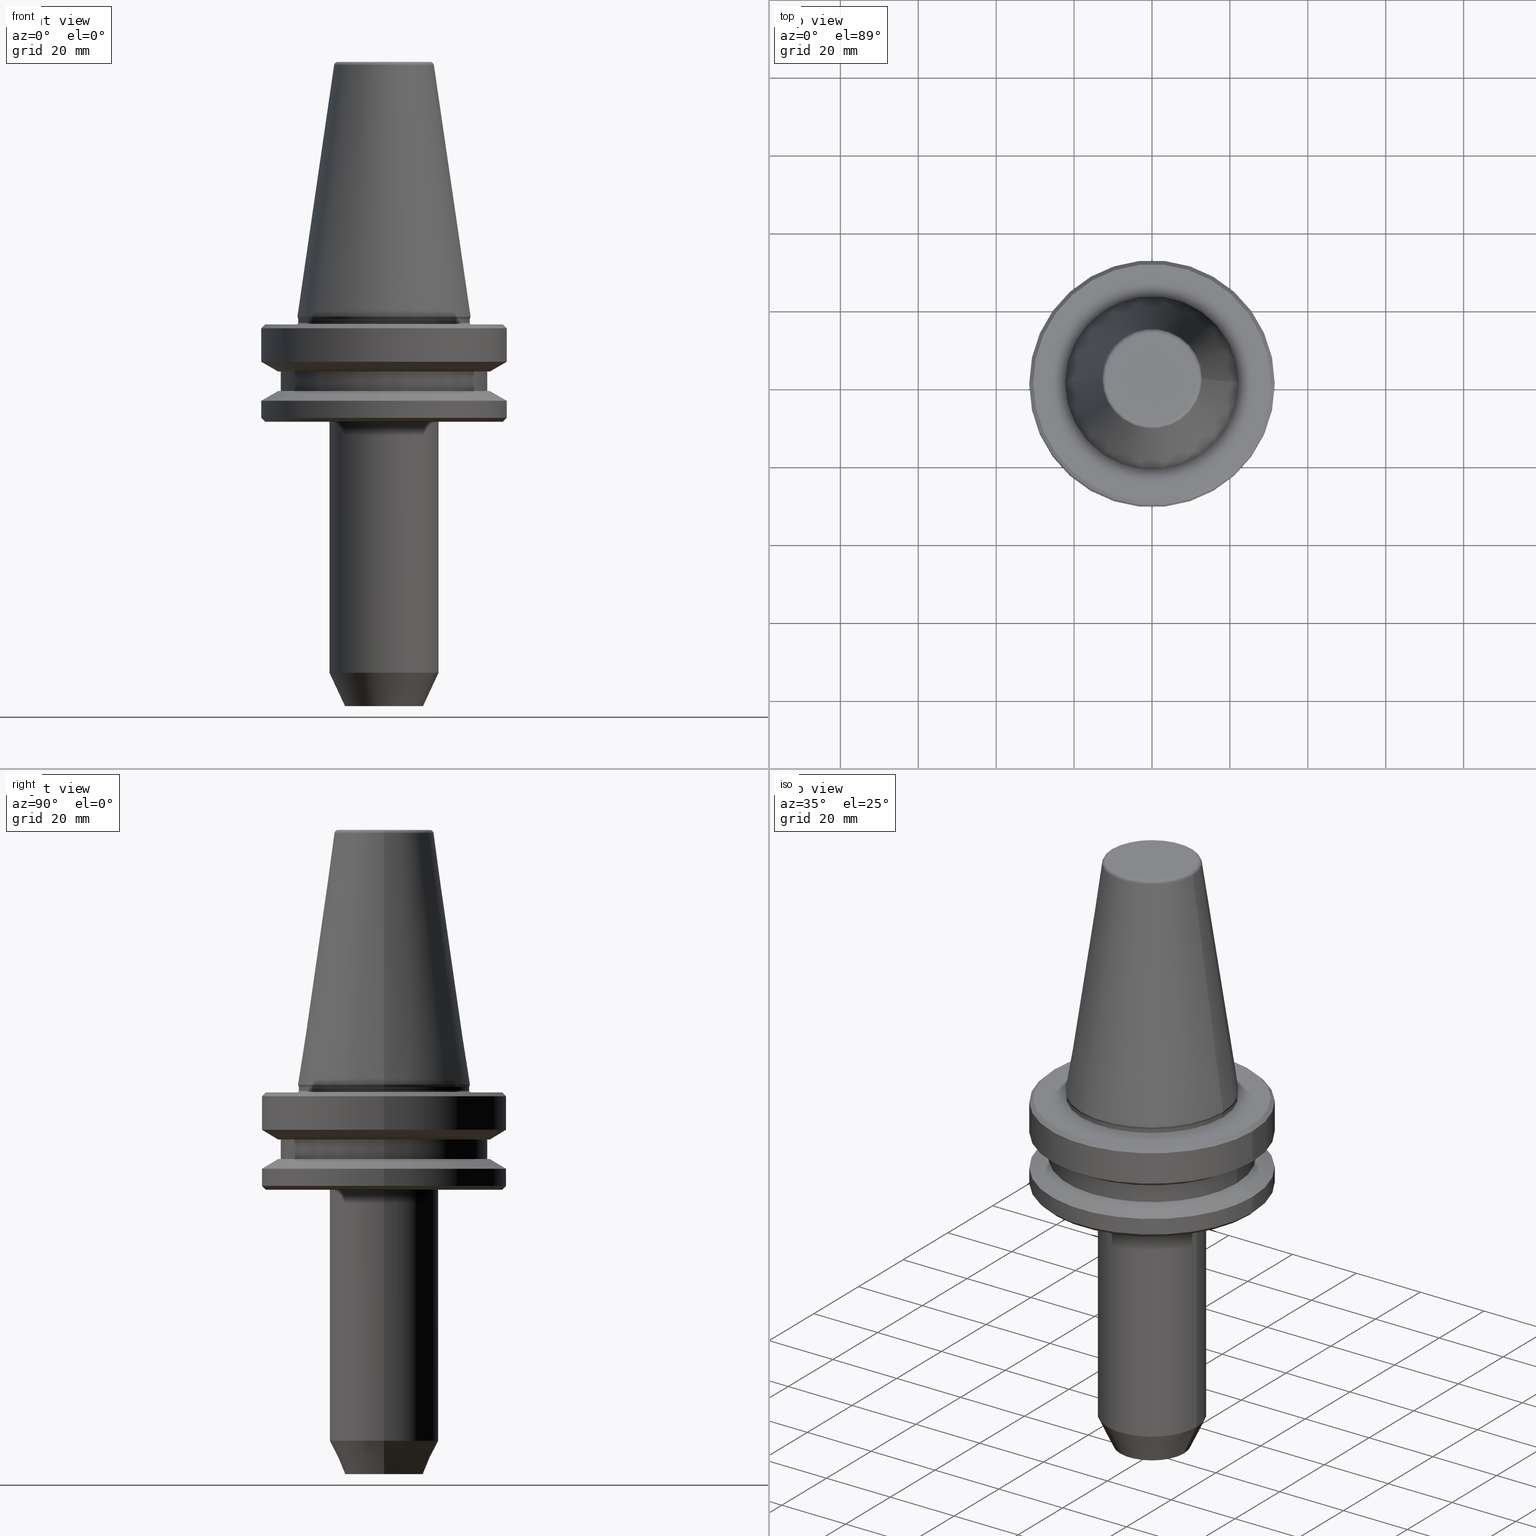
[diagram: canonical four-view strip — front | top / right | iso, engineering-drawing reading convention]
A machine part, canonical four-view strip (front | top / right | iso — engineering-drawing reading convention). The complete STEP part file that produces these views, byte-faithful:
ISO-10303-21;
HEADER;
FILE_DESCRIPTION (( 'STEP AP203' ),
    '1' );
FILE_NAME ('BT40 WE08 100 AD-6.3G15000 SL.STEP',
    '2019-05-22T07:13:16',
    ( '' ),
    ( '' ),
    'SwSTEP 2.0',
    'SolidWorks 2014',
    '' );
FILE_SCHEMA (( 'CONFIG_CONTROL_DESIGN' ));
ENDSEC;

DATA;
#1 = FACE_BOUND ( 'NONE', #868, .T. ) ;
#2 = EDGE_CURVE ( 'NONE', #894, #469, #335, .T. ) ;
#3 = CIRCLE ( 'NONE', #516, 27.16962701892283900 ) ;
#4 = ORIENTED_EDGE ( 'NONE', *, *, #341, .T. ) ;
#5 = EDGE_LOOP ( 'NONE', ( #762, #470, #59, #627 ) ) ;
#6 = ORIENTED_EDGE ( 'NONE', *, *, #837, .F. ) ;
#7 = DIRECTION ( 'NONE',  ( -0.0000000000000000000, -0.0000000000000000000, 1.000000000000000000 ) ) ;
#8 = AXIS2_PLACEMENT_3D ( 'NONE', #357, #136, #780 ) ;
#9 = EDGE_CURVE ( 'NONE', #559, #843, #821, .T. ) ;
#10 = VECTOR ( 'NONE', #7, 1000.000000000000000 ) ;
#11 = CARTESIAN_POINT ( 'NONE',  ( 12.81220206925720200, 0.0000000000000000000, 64.54430818888890500 ) ) ;
#12 = DIRECTION ( 'NONE',  ( 1.000000000000000000, 0.0000000000000000000, 0.0000000000000000000 ) ) ;
#13 = CARTESIAN_POINT ( 'NONE',  ( 0.0000000000000000000, 0.0000000000000000000, -2.999999999999669600 ) ) ;
#14 = EDGE_CURVE ( 'NONE', #254, #325, #790, .T. ) ;
#15 = ORIENTED_EDGE ( 'NONE', *, *, #301, .F. ) ;
#16 = CARTESIAN_POINT ( 'NONE',  ( 0.0000000000000000000, 0.0000000000000000000, -100.0000000000995600 ) ) ;
#17 = DIRECTION ( 'NONE',  ( -0.0000000000000000000, -0.0000000000000000000, 1.000000000000000000 ) ) ;
#18 = ORIENTED_EDGE ( 'NONE', *, *, #142, .T. ) ;
#19 = CARTESIAN_POINT ( 'NONE',  ( -31.49999999999986100, 3.857637417314145300E-015, -21.60014200631687900 ) ) ;
#20 = CARTESIAN_POINT ( 'NONE',  ( -13.99999999999840300, 1.714505518806098800E-015, -27.00000000000024500 ) ) ;
#21 = FACE_OUTER_BOUND ( 'NONE', #591, .T. ) ;
#22 = ADVANCED_FACE ( 'NONE', ( #492 ), #461, .T. ) ;
#23 = CIRCLE ( 'NONE', #653, 11.82266927716807500 ) ;
#24 = CIRCLE ( 'NONE', #147, 31.49999999999986100 ) ;
#25 = CARTESIAN_POINT ( 'NONE',  ( -22.02412295168550200, 2.697177167680940500E-015, -0.5519051543291519900 ) ) ;
#26 = CARTESIAN_POINT ( 'NONE',  ( 0.0000000000000000000, 0.0000000000000000000, 64.40000000000067400 ) ) ;
#27 = VERTEX_POINT ( 'NONE', #380 ) ;
#28 = ORIENTED_EDGE ( 'NONE', *, *, #330, .F. ) ;
#29 = EDGE_LOOP ( 'NONE', ( #296, #629, #794, #677 ) ) ;
#30 = PRODUCT ( 'BT40 WE08 100 AD-6.3G15000 SL', 'BT40 WE08 100 AD-6.3G15000 SL', '', ( #490 ) ) ;
#31 = VERTEX_POINT ( 'NONE', #899 ) ;
#32 = AXIS2_PLACEMENT_3D ( 'NONE', #231, #930, #211 ) ;
#33 = DIRECTION ( 'NONE',  ( 1.000000000000000000, 0.0000000000000000000, 0.0000000000000000000 ) ) ;
#34 = EDGE_CURVE ( 'NONE', #444, #31, #64, .T. ) ;
#35 = EDGE_CURVE ( 'NONE', #896, #912, #267, .T. ) ;
#36 = CARTESIAN_POINT ( 'NONE',  ( 0.0000000000000000000, 26.50000000000013500, -19.10000000000011500 ) ) ;
#37 = DIRECTION ( 'NONE',  ( 1.000000000000000000, 0.0000000000000000000, 0.0000000000000000000 ) ) ;
#38 = CIRCLE ( 'NONE', #732, 9.999999999998399500 ) ;
#39 = ORIENTED_EDGE ( 'NONE', *, *, #9, .F. ) ;
#40 = ORIENTED_EDGE ( 'NONE', *, *, #578, .T. ) ;
#41 = AXIS2_PLACEMENT_3D ( 'NONE', #651, #180, #56 ) ;
#42 = DIRECTION ( 'NONE',  ( 0.0000000000000000000, -0.0000000000000000000, 1.000000000000000000 ) ) ;
#43 = CARTESIAN_POINT ( 'NONE',  ( 0.0000000000000000000, 0.0000000000000000000, -1.499999999999723800 ) ) ;
#44 = APPROVAL_DATE_TIME ( #276, #173 ) ;
#45 = ORIENTED_EDGE ( 'NONE', *, *, #196, .F. ) ;
#46 = ORIENTED_EDGE ( 'NONE', *, *, #734, .T. ) ;
#47 = EDGE_CURVE ( 'NONE', #167, #571, #110, .T. ) ;
#48 = VERTEX_POINT ( 'NONE', #326 ) ;
#49 = EDGE_CURVE ( 'NONE', #571, #931, #287, .T. ) ;
#50 = DIRECTION ( 'NONE',  ( 0.0000000000000000000, 0.0000000000000000000, -1.000000000000000000 ) ) ;
#51 = DIRECTION ( 'NONE',  ( 1.000000000000000000, 0.0000000000000000000, 0.0000000000000000000 ) ) ;
#52 = CONICAL_SURFACE ( 'NONE', #944, 31.49999999999986100, 1.047197551196595600 ) ;
#53 = APPROVAL_ROLE ( '' ) ;
#54 = CARTESIAN_POINT ( 'NONE',  ( -30.49999999999941700, 3.735172737399355800E-015, -27.00000000000024500 ) ) ;
#55 = EDGE_CURVE ( 'NONE', #432, #521, #617, .T. ) ;
#56 = DIRECTION ( 'NONE',  ( 1.000000000000000000, 0.0000000000000000000, 0.0000000000000000000 ) ) ;
#57 = EDGE_CURVE ( 'NONE', #48, #154, #90, .T. ) ;
#58 = DIRECTION ( 'NONE',  ( 1.000000000000000000, 0.0000000000000000000, 0.0000000000000000000 ) ) ;
#59 = ORIENTED_EDGE ( 'NONE', *, *, #499, .F. ) ;
#60 = AXIS2_PLACEMENT_3D ( 'NONE', #467, #692, #433 ) ;
#61 = EDGE_LOOP ( 'NONE', ( #807, #994, #332, #763 ) ) ;
#62 = DIRECTION ( 'NONE',  ( 0.0000000000000000000, 0.0000000000000000000, -1.000000000000000000 ) ) ;
#63 = DIRECTION ( 'NONE',  ( -0.0000000000000000000, -0.0000000000000000000, 1.000000000000000000 ) ) ;
#64 = CIRCLE ( 'NONE', #302, 1.000000000000006000 ) ;
#65 = CARTESIAN_POINT ( 'NONE',  ( 0.0000000000000000000, 0.0000000000000000000, 81.16727785008510000 ) ) ;
#66 = VECTOR ( 'NONE', #792, 1000.000000000000000 ) ;
#67 = DIRECTION ( 'NONE',  ( 0.7071067811865474600, 0.0000000000000000000, 0.7071067811865475700 ) ) ;
#68 = CARTESIAN_POINT ( 'NONE',  ( 31.49999999999986100, 3.857637417314145300E-015, -21.60014200631687900 ) ) ;
#69 = AXIS2_PLACEMENT_3D ( 'NONE', #135, #536, #87 ) ;
#70 = EDGE_CURVE ( 'NONE', #557, #765, #914, .T. ) ;
#71 = DIRECTION ( 'NONE',  ( -1.000000000000000000, 0.0000000000000000000, 0.0000000000000000000 ) ) ;
#72 = CARTESIAN_POINT ( 'NONE',  ( 13.99999999999840300, 0.0000000000000000000, -91.42197231806147800 ) ) ;
#73 = VECTOR ( 'NONE', #93, 1000.000000000000000 ) ;
#74 = EDGE_LOOP ( 'NONE', ( #612, #138, #488, #957 ) ) ;
#75 = DIRECTION ( 'NONE',  ( -0.0000000000000000000, -0.0000000000000000000, 1.000000000000000000 ) ) ;
#76 = APPROVAL_PERSON_ORGANIZATION ( #295, #173, #910 ) ;
#77 = EDGE_LOOP ( 'NONE', ( #892, #856, #655, #340 ) ) ;
#78 = CARTESIAN_POINT ( 'NONE',  ( 0.0000000000000000000, 0.0000000000000000000, -0.5519051543291519900 ) ) ;
#79 = DIRECTION ( 'NONE',  ( -0.0000000000000000000, -0.0000000000000000000, 1.000000000000000000 ) ) ;
#80 = EDGE_CURVE ( 'NONE', #445, #752, #961, .T. ) ;
#81 = ADVANCED_FACE ( 'NONE', ( #937 ), #822, .F. ) ;
#82 = CARTESIAN_POINT ( 'NONE',  ( -30.49999999999991500, 0.0000000000000000000, -1.999999999999779700 ) ) ;
#83 = AXIS2_PLACEMENT_3D ( 'NONE', #996, #497, #632 ) ;
#84 = ADVANCED_FACE ( 'NONE', ( #782 ), #689, .T. ) ;
#85 = CIRCLE ( 'NONE', #872, 30.49999999999991500 ) ;
#86 = DIRECTION ( 'NONE',  ( 0.8660254037844377100, 1.060575238724905700E-016, -0.5000000000000017800 ) ) ;
#87 = DIRECTION ( 'NONE',  ( 0.0000000000000000000, 0.0000000000000000000, -1.000000000000000000 ) ) ;
#88 = ORIENTED_EDGE ( 'NONE', *, *, #366, .F. ) ;
#89 = DIRECTION ( 'NONE',  ( -0.4226182617407059900, 5.175581015019738900E-017, 0.9063077870366469400 ) ) ;
#90 = CIRCLE ( 'NONE', #1000, 26.50000000000013500 ) ;
#91 = VECTOR ( 'NONE', #327, 1000.000000000000000 ) ;
#92 = ORIENTED_EDGE ( 'NONE', *, *, #586, .T. ) ;
#93 = DIRECTION ( 'NONE',  ( -0.0000000000000000000, -0.0000000000000000000, 1.000000000000000000 ) ) ;
#94 = AXIS2_PLACEMENT_3D ( 'NONE', #622, #475, #693 ) ;
#95 = DIRECTION ( 'NONE',  ( 1.000000000000000000, 0.0000000000000000000, 0.0000000000000000000 ) ) ;
#96 = CIRCLE ( 'NONE', #393, 31.49999999999986100 ) ;
#97 = EDGE_CURVE ( 'NONE', #765, #352, #814, .T. ) ;
#98 = DIRECTION ( 'NONE',  ( 1.000000000000000000, 0.0000000000000000000, 0.0000000000000000000 ) ) ;
#99 = AXIS2_PLACEMENT_3D ( 'NONE', #563, #139, #744 ) ;
#100 = CARTESIAN_POINT ( 'NONE',  ( 27.16962701892283900, 0.0000000000000000000, -14.09999999999966700 ) ) ;
#101 = CLOSED_SHELL ( 'NONE', ( #422, #434, #1001, #262, #279, #106, #676, #781, #867, #370, #22, #595, #428, #169, #442, #263, #662, #828, #187, #162, #873, #886, #182, #190, #718, #786, #406, #797, #502, #515, #742, #81, #84, #573, #450, #253 ) ) ;
#102 = DIRECTION ( 'NONE',  ( -0.0000000000000000000, -0.0000000000000000000, 1.000000000000000000 ) ) ;
#103 = ORIENTED_EDGE ( 'NONE', *, *, #610, .T. ) ;
#104 = COORDINATED_UNIVERSAL_TIME_OFFSET ( 5, 30, .AHEAD. ) ;
#105 = ORIENTED_EDGE ( 'NONE', *, *, #70, .T. ) ;
#106 = ADVANCED_FACE ( 'NONE', ( #743 ), #477, .T. ) ;
#107 = LINE ( 'NONE', #681, #66 ) ;
#108 = AXIS2_PLACEMENT_3D ( 'NONE', #585, #829, #714 ) ;
#109 = EDGE_LOOP ( 'NONE', ( #443, #933, #613, #844 ) ) ;
#110 = LINE ( 'NONE', #754, #73 ) ;
#111 = ORGANIZATION ( 'UNSPECIFIED', 'UNSPECIFIED', '' ) ;
#112 = EDGE_LOOP ( 'NONE', ( #219, #39 ) ) ;
#113 = CARTESIAN_POINT ( 'NONE',  ( 0.0000000000000000000, 0.0000000000000000000, -0.6887132116596417200 ) ) ;
#114 = CONICAL_SURFACE ( 'NONE', #545, 9.999999999998399500, 0.4363323129985896000 ) ;
#115 = CIRCLE ( 'NONE', #657, 30.49999999999941700 ) ;
#116 = DIRECTION ( 'NONE',  ( -0.0000000000000000000, -0.0000000000000000000, 1.000000000000000000 ) ) ;
#117 = CC_DESIGN_SECURITY_CLASSIFICATION ( #127, ( #998 ) ) ;
#118 = APPROVAL ( #498, 'UNSPECIFIED' ) ;
#119 = EDGE_CURVE ( 'NONE', #392, #644, #496, .T. ) ;
#120 = EDGE_LOOP ( 'NONE', ( #249, #965, #514, #864 ) ) ;
#121 = DATE_AND_TIME ( #354, #558 ) ;
#122 = VERTEX_POINT ( 'NONE', #876 ) ;
#123 = DIRECTION ( 'NONE',  ( -0.0000000000000000000, -0.0000000000000000000, 1.000000000000000000 ) ) ;
#124 = AXIS2_PLACEMENT_3D ( 'NONE', #544, #63, #465 ) ;
#125 = CIRCLE ( 'NONE', #529, 30.49999999999941700 ) ;
#126 = APPLICATION_PROTOCOL_DEFINITION ( 'international standard', 'config_control_design', 1994, #449 ) ;
#127 = SECURITY_CLASSIFICATION ( '', '', #463 ) ;
#128 = CARTESIAN_POINT ( 'NONE',  ( -26.50000000000013500, 3.245314017740502300E-015, 81.16727785008510000 ) ) ;
#129 = CARTESIAN_POINT ( 'NONE',  ( 0.0000000000000000000, 0.0000000000000000000, -1.999999999999779700 ) ) ;
#130 = CARTESIAN_POINT ( 'NONE',  ( 9.999999999998399500, 0.0000000000000000000, -100.0000000000995600 ) ) ;
#131 = CARTESIAN_POINT ( 'NONE',  ( 0.0000000000000000000, 0.0000000000000000000, -91.42197231806147800 ) ) ;
#132 = VERTEX_POINT ( 'NONE', #100 ) ;
#133 = ORIENTED_EDGE ( 'NONE', *, *, #280, .T. ) ;
#134 = CIRCLE ( 'NONE', #518, 21.99999999999982600 ) ;
#135 = CARTESIAN_POINT ( 'NONE',  ( 22.39999999999975300, 0.0000000000000000000, -0.6887132116596417200 ) ) ;
#136 = DIRECTION ( 'NONE',  ( -0.0000000000000000000, -0.0000000000000000000, 1.000000000000000000 ) ) ;
#137 = CIRCLE ( 'NONE', #346, 13.99999999999840300 ) ;
#138 = ORIENTED_EDGE ( 'NONE', *, *, #525, .T. ) ;
#139 = DIRECTION ( 'NONE',  ( -0.0000000000000000000, -0.0000000000000000000, 1.000000000000000000 ) ) ;
#140 = FACE_OUTER_BOUND ( 'NONE', #120, .T. ) ;
#141 = CARTESIAN_POINT ( 'NONE',  ( 0.0000000000000000000, 9.999999999998399500, -100.0000000000995600 ) ) ;
#142 = EDGE_CURVE ( 'NONE', #505, #752, #649, .T. ) ;
#143 = TOROIDAL_SURFACE ( 'NONE', #371, 11.82266927716801800, 1.000000000000005600 ) ;
#144 = DIRECTION ( 'NONE',  ( -0.0000000000000000000, -0.0000000000000000000, 1.000000000000000000 ) ) ;
#145 = DIRECTION ( 'NONE',  ( -0.0000000000000000000, -0.0000000000000000000, 1.000000000000000000 ) ) ;
#146 = CARTESIAN_POINT ( 'NONE',  ( 21.99999999999979700, 0.0000000000000000000, -0.6887132116596417200 ) ) ;
#147 = AXIS2_PLACEMENT_3D ( 'NONE', #652, #145, #974 ) ;
#148 = ORIENTED_EDGE ( 'NONE', *, *, #168, .F. ) ;
#149 = FACE_OUTER_BOUND ( 'NONE', #207, .T. ) ;
#150 = ORIENTED_EDGE ( 'NONE', *, *, #49, .F. ) ;
#151 = CC_DESIGN_PERSON_AND_ORGANIZATION_ASSIGNMENT ( #178, #727, ( #884 ) ) ;
#152 = PERSON_AND_ORGANIZATION ( #369, #111 ) ;
#153 = ORIENTED_EDGE ( 'NONE', *, *, #462, .F. ) ;
#154 = VERTEX_POINT ( 'NONE', #156 ) ;
#155 = PERSON_AND_ORGANIZATION_ROLE ( 'creator' ) ;
#156 = CARTESIAN_POINT ( 'NONE',  ( 26.50000000000013500, 0.0000000000000000000, -14.09999999999966700 ) ) ;
#157 = VECTOR ( 'NONE', #759, 1000.000000000000000 ) ;
#158 = CARTESIAN_POINT ( 'NONE',  ( -31.49999999999986100, 3.857637417314145300E-015, 81.16727785008510000 ) ) ;
#159 = CIRCLE ( 'NONE', #936, 13.99999999999840300 ) ;
#160 = CARTESIAN_POINT ( 'NONE',  ( 0.0000000000000000000, 0.0000000000000000000, -0.5519051543291519900 ) ) ;
#161 = EDGE_CURVE ( 'NONE', #469, #418, #848, .T. ) ;
#162 = ADVANCED_FACE ( 'NONE', ( #798 ), #378, .T. ) ;
#163 = ORIENTED_EDGE ( 'NONE', *, *, #359, .F. ) ;
#164 = DIRECTION ( 'NONE',  ( 1.000000000000000000, 0.0000000000000000000, 0.0000000000000000000 ) ) ;
#165 = ORIENTED_EDGE ( 'NONE', *, *, #648, .F. ) ;
#166 = CYLINDRICAL_SURFACE ( 'NONE', #897, 26.50000000000013500 ) ;
#167 = VERTEX_POINT ( 'NONE', #690 ) ;
#168 = EDGE_CURVE ( 'NONE', #167, #999, #412, .T. ) ;
#169 = ADVANCED_FACE ( 'NONE', ( #508 ), #210, .T. ) ;
#170 = CARTESIAN_POINT ( 'NONE',  ( 0.0000000000000000000, 0.0000000000000000000, -27.00000000000024500 ) ) ;
#171 = AXIS2_PLACEMENT_3D ( 'NONE', #436, #812, #232 ) ;
#172 = CARTESIAN_POINT ( 'NONE',  ( 31.49999999999986100, 0.0000000000000000000, -25.99999999999980100 ) ) ;
#173 = APPROVAL ( #230, 'UNSPECIFIED' ) ;
#174 = DIRECTION ( 'NONE',  ( 0.1443081888881783400, 1.767265616126592900E-017, -0.9895327920891828800 ) ) ;
#175 = DIRECTION ( 'NONE',  ( 0.0000000000000000000, -0.0000000000000000000, 1.000000000000000000 ) ) ;
#176 = CARTESIAN_POINT ( 'NONE',  ( -21.99999999999981200, 2.694222958124154300E-015, 81.16727785008510000 ) ) ;
#177 = ORIENTED_EDGE ( 'NONE', *, *, #713, .F. ) ;
#178 = PERSON_AND_ORGANIZATION ( #369, #111 ) ;
#179 = EDGE_LOOP ( 'NONE', ( #580, #740, #633, #293 ) ) ;
#180 = DIRECTION ( 'NONE',  ( -0.0000000000000000000, -0.0000000000000000000, 1.000000000000000000 ) ) ;
#181 = AXIS2_PLACEMENT_3D ( 'NONE', #941, #116, #616 ) ;
#182 = ADVANCED_FACE ( 'NONE', ( #343 ), #397, .T. ) ;
#183 = EDGE_CURVE ( 'NONE', #532, #810, #312, .T. ) ;
#184 = LINE ( 'NONE', #424, #10 ) ;
#185 = DIRECTION ( 'NONE',  ( 1.000000000000000000, 0.0000000000000000000, 0.0000000000000000000 ) ) ;
#186 = CARTESIAN_POINT ( 'NONE',  ( 30.49999999999991500, 3.796405077356780900E-015, -1.999999999999779700 ) ) ;
#187 = ADVANCED_FACE ( 'NONE', ( #243 ), #114, .T. ) ;
#188 = ORIENTED_EDGE ( 'NONE', *, *, #546, .T. ) ;
#189 = FACE_OUTER_BOUND ( 'NONE', #451, .T. ) ;
#190 = ADVANCED_FACE ( 'NONE', ( #193 ), #52, .T. ) ;
#191 = ORIENTED_EDGE ( 'NONE', *, *, #161, .F. ) ;
#192 = EDGE_CURVE ( 'NONE', #418, #469, #96, .T. ) ;
#193 = FACE_OUTER_BOUND ( 'NONE', #542, .T. ) ;
#194 = APPROVAL_ROLE ( '' ) ;
#195 = CARTESIAN_POINT ( 'NONE',  ( 0.0000000000000000000, 0.0000000000000000000, -21.60014200631687900 ) ) ;
#196 = EDGE_CURVE ( 'NONE', #532, #644, #425, .T. ) ;
#197 = AXIS2_PLACEMENT_3D ( 'NONE', #141, #175, #453 ) ;
#198 = CARTESIAN_POINT ( 'NONE',  ( 0.0000000000000000000, 0.0000000000000000000, -100.0000000000995600 ) ) ;
#199 = AXIS2_PLACEMENT_3D ( 'NONE', #160, #924, #522 ) ;
#200 = DIRECTION ( 'NONE',  ( 0.0000000000000000000, 0.0000000000000000000, -1.000000000000000000 ) ) ;
#201 = EDGE_CURVE ( 'NONE', #521, #931, #288, .T. ) ;
#202 = ORIENTED_EDGE ( 'NONE', *, *, #495, .T. ) ;
#203 = EDGE_CURVE ( 'NONE', #887, #325, #184, .T. ) ;
#204 = DIRECTION ( 'NONE',  ( 1.000000000000000000, 0.0000000000000000000, 0.0000000000000000000 ) ) ;
#205 = COORDINATED_UNIVERSAL_TIME_OFFSET ( 5, 30, .AHEAD. ) ;
#206 = ORIENTED_EDGE ( 'NONE', *, *, #47, .F. ) ;
#207 = EDGE_LOOP ( 'NONE', ( #995, #103 ) ) ;
#208 = LINE ( 'NONE', #641, #761 ) ;
#209 = DIRECTION ( 'NONE',  ( -0.0000000000000000000, -0.0000000000000000000, 1.000000000000000000 ) ) ;
#210 = CONICAL_SURFACE ( 'NONE', #900, 9.999999999998399500, 0.4363323129985896000 ) ;
#211 = DIRECTION ( 'NONE',  ( 1.000000000000000000, 0.0000000000000000000, 0.0000000000000000000 ) ) ;
#212 = CIRCLE ( 'NONE', #638, 31.49999999999986100 ) ;
#213 = EDGE_CURVE ( 'NONE', #540, #31, #23, .T. ) ;
#214 = DIRECTION ( 'NONE',  ( -0.0000000000000000000, -0.0000000000000000000, 1.000000000000000000 ) ) ;
#215 = CC_DESIGN_PERSON_AND_ORGANIZATION_ASSIGNMENT ( #530, #925, ( #998 ) ) ;
#216 = DIRECTION ( 'NONE',  ( 0.0000000000000000000, 0.0000000000000000000, -1.000000000000000000 ) ) ;
#217 = ORIENTED_EDGE ( 'NONE', *, *, #474, .F. ) ;
#218 = FACE_OUTER_BOUND ( 'NONE', #935, .T. ) ;
#219 = ORIENTED_EDGE ( 'NONE', *, *, #578, .F. ) ;
#220 = ORIENTED_EDGE ( 'NONE', *, *, #592, .T. ) ;
#221 = DATE_TIME_ROLE ( 'classification_date' ) ;
#222 = CARTESIAN_POINT ( 'NONE',  ( 30.49999999999941700, 0.0000000000000000000, -27.00000000000024500 ) ) ;
#223 = EDGE_LOOP ( 'NONE', ( #460, #568, #402, #153 ) ) ;
#224 = DIRECTION ( 'NONE',  ( 1.000000000000000000, 0.0000000000000000000, 0.0000000000000000000 ) ) ;
#225 = LINE ( 'NONE', #803, #237 ) ;
#226 = CC_DESIGN_PERSON_AND_ORGANIZATION_ASSIGNMENT ( #832, #927, ( #30 ) ) ;
#227 = DIRECTION ( 'NONE',  ( 1.000000000000000000, 0.0000000000000000000, 0.0000000000000000000 ) ) ;
#228 = CIRCLE ( 'NONE', #395, 27.16962701892206100 ) ;
#229 = EDGE_CURVE ( 'NONE', #27, #48, #915, .T. ) ;
#230 = APPROVAL_STATUS ( 'not_yet_approved' ) ;
#231 = CARTESIAN_POINT ( 'NONE',  ( 0.0000000000000000000, 0.0000000000000000000, 81.16727785008510000 ) ) ;
#232 = DIRECTION ( 'NONE',  ( 1.000000000000000000, 0.0000000000000000000, 0.0000000000000000000 ) ) ;
#233 = DIRECTION ( 'NONE',  ( -0.0000000000000000000, -0.0000000000000000000, 1.000000000000000000 ) ) ;
#234 = FACE_OUTER_BOUND ( 'NONE', #277, .T. ) ;
#235 = AXIS2_PLACEMENT_3D ( 'NONE', #36, #50, #396 ) ;
#236 = DIRECTION ( 'NONE',  ( 0.0000000000000000000, 0.0000000000000000000, -1.000000000000000000 ) ) ;
#237 = VECTOR ( 'NONE', #501, 1000.000000000000000 ) ;
#238 = DIRECTION ( 'NONE',  ( -0.7071067811865671100, 0.0000000000000000000, -0.7071067811865279200 ) ) ;
#239 = ORIENTED_EDGE ( 'NONE', *, *, #168, .T. ) ;
#240 = ORIENTED_EDGE ( 'NONE', *, *, #413, .F. ) ;
#241 = DIRECTION ( 'NONE',  ( 1.000000000000000000, 0.0000000000000000000, 0.0000000000000000000 ) ) ;
#242 = CONICAL_SURFACE ( 'NONE', #524, 31.49999999999986100, 0.7853981633974760300 ) ;
#243 = FACE_OUTER_BOUND ( 'NONE', #973, .T. ) ;
#244 = AXIS2_PLACEMENT_3D ( 'NONE', #13, #755, #387 ) ;
#245 = DIRECTION ( 'NONE',  ( -0.0000000000000000000, -0.0000000000000000000, 1.000000000000000000 ) ) ;
#246 = AXIS2_PLACEMENT_3D ( 'NONE', #78, #437, #37 ) ;
#247 = DIRECTION ( 'NONE',  ( 1.000000000000000000, 0.0000000000000000000, 0.0000000000000000000 ) ) ;
#248 = CARTESIAN_POINT ( 'NONE',  ( 0.0000000000000000000, 0.0000000000000000000, 0.0000000000000000000 ) ) ;
#249 = ORIENTED_EDGE ( 'NONE', *, *, #734, .F. ) ;
#250 = CIRCLE ( 'NONE', #955, 1.000000000000000900 ) ;
#251 = AXIS2_PLACEMENT_3D ( 'NONE', #329, #569, #164 ) ;
#252 = ORIENTED_EDGE ( 'NONE', *, *, #55, .T. ) ;
#253 = ADVANCED_FACE ( 'NONE', ( #863 ), #639, .T. ) ;
#254 = VERTEX_POINT ( 'NONE', #858 ) ;
#255 = CARTESIAN_POINT ( 'NONE',  ( 0.0000000000000000000, 0.0000000000000000000, -21.60014200631687900 ) ) ;
#256 = ORIENTED_EDGE ( 'NONE', *, *, #598, .T. ) ;
#257 = EDGE_CURVE ( 'NONE', #444, #557, #962, .T. ) ;
#258 = UNCERTAINTY_MEASURE_WITH_UNIT (LENGTH_MEASURE( 1.000000000000000100E-005 ), #951, 'distance_accuracy_value', 'NONE');
#259 = MANIFOLD_SOLID_BREP ( 'Revolve1', #101 ) ;
#260 = CARTESIAN_POINT ( 'NONE',  ( 31.49999999999986100, 3.857637417314145300E-015, -2.999999999999669600 ) ) ;
#261 = CARTESIAN_POINT ( 'NONE',  ( -27.16962701892283900, 3.592478546794637900E-015, -14.09999999999966700 ) ) ;
#262 = ADVANCED_FACE ( 'NONE', ( #986 ), #636, .T. ) ;
#263 = ADVANCED_FACE ( 'NONE', ( #723 ), #784, .T. ) ;
#264 = ORIENTED_EDGE ( 'NONE', *, *, #203, .F. ) ;
#265 = DIRECTION ( 'NONE',  ( 1.000000000000000000, 0.0000000000000000000, 0.0000000000000000000 ) ) ;
#266 = AXIS2_PLACEMENT_3D ( 'NONE', #561, #737, #344 ) ;
#267 = LINE ( 'NONE', #350, #922 ) ;
#268 = DIRECTION ( 'NONE',  ( -1.000000000000000000, 0.0000000000000000000, 0.0000000000000000000 ) ) ;
#269 = EDGE_LOOP ( 'NONE', ( #519, #283, #430, #409 ) ) ;
#270 = AXIS2_PLACEMENT_3D ( 'NONE', #857, #926, #367 ) ;
#271 = CARTESIAN_POINT ( 'NONE',  ( -31.49999999999986100, 0.0000000000000000000, -21.60014200631687900 ) ) ;
#272 = TOROIDAL_SURFACE ( 'NONE', #41, 22.39999999999975300, 0.3999999999999702700 ) ;
#273 = CARTESIAN_POINT ( 'NONE',  ( 0.0000000000000000000, 0.0000000000000000000, 65.40000000000067400 ) ) ;
#274 = DIRECTION ( 'NONE',  ( 1.000000000000000000, 0.0000000000000000000, 0.0000000000000000000 ) ) ;
#275 = EDGE_LOOP ( 'NONE', ( #240, #92, #889, #902 ) ) ;
#276 = DATE_AND_TIME ( #487, #684 ) ;
#277 = EDGE_LOOP ( 'NONE', ( #252, #337, #969, #500 ) ) ;
#278 = CARTESIAN_POINT ( 'NONE',  ( 0.0000000000000000000, 0.0000000000000000000, -1.999999999999779700 ) ) ;
#279 = ADVANCED_FACE ( 'NONE', ( #757 ), #620, .F. ) ;
#280 = EDGE_CURVE ( 'NONE', #132, #887, #597, .T. ) ;
#281 = DIRECTION ( 'NONE',  ( 0.0000000000000000000, 0.0000000000000000000, -1.000000000000000000 ) ) ;
#282 = CARTESIAN_POINT ( 'NONE',  ( 0.0000000000000000000, 0.0000000000000000000, 81.16727785008510000 ) ) ;
#283 = ORIENTED_EDGE ( 'NONE', *, *, #362, .T. ) ;
#284 = CARTESIAN_POINT ( 'NONE',  ( -21.99999999999982600, 2.724839128102844800E-015, -1.499999999999723800 ) ) ;
#285 = SHAPE_DEFINITION_REPRESENTATION ( #908, #869 ) ;
#286 = AXIS2_PLACEMENT_3D ( 'NONE', #65, #982, #98 ) ;
#287 = CIRCLE ( 'NONE', #703, 21.99999999999979700 ) ;
#288 = CIRCLE ( 'NONE', #753, 0.3999999999999698200 ) ;
#289 = DIRECTION ( 'NONE',  ( -0.0000000000000000000, -0.0000000000000000000, 1.000000000000000000 ) ) ;
#290 = DIRECTION ( 'NONE',  ( -0.0000000000000000000, -0.0000000000000000000, 1.000000000000000000 ) ) ;
#291 = EDGE_CURVE ( 'NONE', #887, #912, #824, .T. ) ;
#292 = CARTESIAN_POINT ( 'NONE',  ( 0.0000000000000000000, 0.0000000000000000000, -19.10000000000011500 ) ) ;
#293 = ORIENTED_EDGE ( 'NONE', *, *, #14, .F. ) ;
#294 = CARTESIAN_POINT ( 'NONE',  ( 30.49999999999941700, 0.0000000000000000000, -27.00000000000024500 ) ) ;
#295 = PERSON_AND_ORGANIZATION ( #369, #111 ) ;
#296 = ORIENTED_EDGE ( 'NONE', *, *, #341, .F. ) ;
#297 = AXIS2_PLACEMENT_3D ( 'NONE', #745, #447, #901 ) ;
#298 = VECTOR ( 'NONE', #328, 1000.000000000000000 ) ;
#299 = CARTESIAN_POINT ( 'NONE',  ( 0.0000000000000000000, 0.0000000000000000000, -100.0000000000995600 ) ) ;
#300 = AXIS2_PLACEMENT_3D ( 'NONE', #466, #985, #709 ) ;
#301 = EDGE_CURVE ( 'NONE', #445, #469, #551, .T. ) ;
#302 = AXIS2_PLACEMENT_3D ( 'NONE', #705, #305, #691 ) ;
#303 = CARTESIAN_POINT ( 'NONE',  ( 22.02412295168550200, 0.0000000000000000000, -0.5519051543291519900 ) ) ;
#304 = DIRECTION ( 'NONE',  ( 1.000000000000000000, 0.0000000000000000000, 0.0000000000000000000 ) ) ;
#305 = DIRECTION ( 'NONE',  ( 1.224646799147353200E-016, 1.000000000000000000, 0.0000000000000000000 ) ) ;
#306 = ORIENTED_EDGE ( 'NONE', *, *, #14, .T. ) ;
#307 = EDGE_LOOP ( 'NONE', ( #977, #202, #567, #264 ) ) ;
#308 = EDGE_CURVE ( 'NONE', #912, #887, #549, .T. ) ;
#309 = ORIENTED_EDGE ( 'NONE', *, *, #213, .T. ) ;
#310 = DIRECTION ( 'NONE',  ( 1.000000000000000000, 0.0000000000000000000, 0.0000000000000000000 ) ) ;
#311 = LINE ( 'NONE', #441, #725 ) ;
#312 = CIRCLE ( 'NONE', #576, 9.999999999998399500 ) ;
#313 = CARTESIAN_POINT ( 'NONE',  ( 27.16962701892206100, 3.592478546794589700E-015, -19.10000000000011500 ) ) ;
#314 = PLANE ( 'NONE',  #197 ) ;
#315 = CIRCLE ( 'NONE', #69, 0.3999999999999702700 ) ;
#316 = DIRECTION ( 'NONE',  ( 1.000000000000000000, 0.0000000000000000000, 0.0000000000000000000 ) ) ;
#317 = CIRCLE ( 'NONE', #893, 22.49999999999990800 ) ;
#318 = DIRECTION ( 'NONE',  ( 1.000000000000000000, 0.0000000000000000000, 0.0000000000000000000 ) ) ;
#319 = AXIS2_PLACEMENT_3D ( 'NONE', #710, #17, #956 ) ;
#320 = AXIS2_PLACEMENT_3D ( 'NONE', #621, #806, #265 ) ;
#321 = CARTESIAN_POINT ( 'NONE',  ( 11.82266927716807500, 0.0000000000000000000, 65.40000000000067400 ) ) ;
#322 = EDGE_LOOP ( 'NONE', ( #603, #731, #625, #363 ) ) ;
#323 = ORIENTED_EDGE ( 'NONE', *, *, #2, .F. ) ;
#324 = PERSON_AND_ORGANIZATION ( #369, #111 ) ;
#325 = VERTEX_POINT ( 'NONE', #932 ) ;
#326 = CARTESIAN_POINT ( 'NONE',  ( -26.50000000000013500, 3.245314017740502300E-015, -14.09999999999966700 ) ) ;
#327 = DIRECTION ( 'NONE',  ( -0.0000000000000000000, -0.0000000000000000000, 1.000000000000000000 ) ) ;
#328 = DIRECTION ( 'NONE',  ( -0.0000000000000000000, -0.0000000000000000000, 1.000000000000000000 ) ) ;
#329 = CARTESIAN_POINT ( 'NONE',  ( 0.0000000000000000000, 0.0000000000000000000, -1.499999999999723800 ) ) ;
#330 = EDGE_CURVE ( 'NONE', #132, #896, #599, .T. ) ;
#331 = DIRECTION ( 'NONE',  ( 1.000000000000000000, 0.0000000000000000000, 0.0000000000000000000 ) ) ;
#332 = ORIENTED_EDGE ( 'NONE', *, *, #648, .T. ) ;
#333 = ORIENTED_EDGE ( 'NONE', *, *, #359, .T. ) ;
#334 = EDGE_CURVE ( 'NONE', #392, #841, #446, .T. ) ;
#335 = LINE ( 'NONE', #68, #503 ) ;
#336 = FACE_OUTER_BOUND ( 'NONE', #5, .T. ) ;
#337 = ORIENTED_EDGE ( 'NONE', *, *, #535, .T. ) ;
#338 = CARTESIAN_POINT ( 'NONE',  ( 0.0000000000000000000, 0.0000000000000000000, -1.999999999999779700 ) ) ;
#339 = CARTESIAN_POINT ( 'NONE',  ( 0.0000000000000000000, 0.0000000000000000000, 64.54430818888890500 ) ) ;
#340 = ORIENTED_EDGE ( 'NONE', *, *, #713, .T. ) ;
#341 = EDGE_CURVE ( 'NONE', #521, #432, #438, .T. ) ;
#342 = AXIS2_PLACEMENT_3D ( 'NONE', #129, #785, #871 ) ;
#343 = FACE_OUTER_BOUND ( 'NONE', #269, .T. ) ;
#344 = DIRECTION ( 'NONE',  ( 1.000000000000000000, 0.0000000000000000000, 0.0000000000000000000 ) ) ;
#345 = VECTOR ( 'NONE', #489, 1000.000000000000000 ) ;
#346 = AXIS2_PLACEMENT_3D ( 'NONE', #854, #209, #483 ) ;
#347 = DIRECTION ( 'NONE',  ( -0.0000000000000000000, -0.0000000000000000000, 1.000000000000000000 ) ) ;
#348 = CARTESIAN_POINT ( 'NONE',  ( 0.0000000000000000000, 0.0000000000000000000, 81.16727785008510000 ) ) ;
#349 = CARTESIAN_POINT ( 'NONE',  ( 0.0000000000000000000, 0.0000000000000000000, -14.09999999999966700 ) ) ;
#350 = CARTESIAN_POINT ( 'NONE',  ( -27.16962701892283900, 3.327319676275129600E-015, -14.09999999999966700 ) ) ;
#351 = ORIENTED_EDGE ( 'NONE', *, *, #738, .F. ) ;
#352 = VERTEX_POINT ( 'NONE', #704 ) ;
#353 = DIRECTION ( 'NONE',  ( -0.0000000000000000000, -0.0000000000000000000, 1.000000000000000000 ) ) ;
#354 = CALENDAR_DATE ( 2019, 22, 5 ) ;
#355 = ORIENTED_EDGE ( 'NONE', *, *, #119, .F. ) ;
#356 = EDGE_CURVE ( 'NONE', #432, #571, #315, .T. ) ;
#357 = CARTESIAN_POINT ( 'NONE',  ( 0.0000000000000000000, 0.0000000000000000000, -19.10000000000011500 ) ) ;
#358 = LINE ( 'NONE', #643, #298 ) ;
#359 = EDGE_CURVE ( 'NONE', #122, #894, #455, .T. ) ;
#360 = CIRCLE ( 'NONE', #270, 0.5000000000000837100 ) ;
#361 = DIRECTION ( 'NONE',  ( 1.000000000000000000, 0.0000000000000000000, 0.0000000000000000000 ) ) ;
#362 = EDGE_CURVE ( 'NONE', #752, #445, #212, .T. ) ;
#363 = ORIENTED_EDGE ( 'NONE', *, *, #592, .F. ) ;
#364 = CONICAL_SURFACE ( 'NONE', #664, 27.16962701892283900, 1.047197551196594700 ) ;
#365 = ORIENTED_EDGE ( 'NONE', *, *, #368, .T. ) ;
#366 = EDGE_CURVE ( 'NONE', #841, #566, #159, .T. ) ;
#367 = DIRECTION ( 'NONE',  ( 0.0000000000000000000, 0.0000000000000000000, -1.000000000000000000 ) ) ;
#368 = EDGE_CURVE ( 'NONE', #696, #505, #115, .T. ) ;
#369 = PERSON ( 'UNSPECIFIED', 'UNSPECIFIED', 'UNSPECIFIED', ('UNSPECIFIED'), ('UNSPECIFIED'), ('UNSPECIFIED') ) ;
#370 = ADVANCED_FACE ( 'NONE', ( #140 ), #909, .T. ) ;
#371 = AXIS2_PLACEMENT_3D ( 'NONE', #26, #75, #913 ) ;
#372 = CARTESIAN_POINT ( 'NONE',  ( 0.0000000000000000000, 0.0000000000000000000, -0.5519051543291519900 ) ) ;
#373 = ORIENTED_EDGE ( 'NONE', *, *, #35, .F. ) ;
#374 = DIRECTION ( 'NONE',  ( 0.7071067811865671100, 8.659560562355173200E-017, -0.7071067811865279200 ) ) ;
#375 = DATE_AND_TIME ( #583, #776 ) ;
#376 = DIRECTION ( 'NONE',  ( 1.000000000000000000, 0.0000000000000000000, 0.0000000000000000000 ) ) ;
#377 = EDGE_CURVE ( 'NONE', #325, #254, #24, .T. ) ;
#378 = CYLINDRICAL_SURFACE ( 'NONE', #800, 13.99999999999840300 ) ;
#379 = DIRECTION ( 'NONE',  ( -0.0000000000000000000, -0.0000000000000000000, 1.000000000000000000 ) ) ;
#380 = CARTESIAN_POINT ( 'NONE',  ( -26.50000000000013500, 3.245314017740502300E-015, -19.10000000000011500 ) ) ;
#381 = DIRECTION ( 'NONE',  ( 1.000000000000000000, 0.0000000000000000000, 0.0000000000000000000 ) ) ;
#382 = CARTESIAN_POINT ( 'NONE',  ( 0.0000000000000000000, 0.0000000000000000000, 81.16727785008510000 ) ) ;
#383 = CARTESIAN_POINT ( 'NONE',  ( 31.49999999999986100, 0.0000000000000000000, -11.59985799368334900 ) ) ;
#384 = FACE_OUTER_BOUND ( 'NONE', #675, .T. ) ;
#385 = ORIENTED_EDGE ( 'NONE', *, *, #942, .T. ) ;
#386 = EDGE_CURVE ( 'NONE', #122, #418, #929, .T. ) ;
#387 = DIRECTION ( 'NONE',  ( 1.000000000000000000, 0.0000000000000000000, 0.0000000000000000000 ) ) ;
#388 = EDGE_LOOP ( 'NONE', ( #604, #484, #667, #88 ) ) ;
#389 = CARTESIAN_POINT ( 'NONE',  ( 13.99999999999840300, 0.0000000000000000000, -27.00000000000024500 ) ) ;
#390 = DIRECTION ( 'NONE',  ( -1.000000000000000000, 0.0000000000000000000, 0.0000000000000000000 ) ) ;
#391 = FACE_OUTER_BOUND ( 'NONE', #840, .T. ) ;
#392 = VERTEX_POINT ( 'NONE', #660 ) ;
#393 = AXIS2_PLACEMENT_3D ( 'NONE', #419, #245, #728 ) ;
#394 = CARTESIAN_POINT ( 'NONE',  ( -22.22499999999977400, 0.0000000000000000000, 0.0000000000000000000 ) ) ;
#395 = AXIS2_PLACEMENT_3D ( 'NONE', #482, #480, #361 ) ;
#396 = DIRECTION ( 'NONE',  ( -1.000000000000000000, 0.0000000000000000000, -0.0000000000000000000 ) ) ;
#397 = CYLINDRICAL_SURFACE ( 'NONE', #416, 31.49999999999986100 ) ;
#398 = LINE ( 'NONE', #579, #572 ) ;
#399 = CARTESIAN_POINT ( 'NONE',  ( -31.49999999999986100, 3.857637417314145300E-015, -25.99999999999980100 ) ) ;
#400 = AXIS2_PLACEMENT_3D ( 'NONE', #131, #123, #304 ) ;
#401 = FACE_OUTER_BOUND ( 'NONE', #223, .T. ) ;
#402 = ORIENTED_EDGE ( 'NONE', *, *, #213, .F. ) ;
#403 = ORIENTED_EDGE ( 'NONE', *, *, #462, .T. ) ;
#404 = ORIENTED_EDGE ( 'NONE', *, *, #291, .F. ) ;
#405 = APPROVAL_DATE_TIME ( #605, #698 ) ;
#406 = ADVANCED_FACE ( 'NONE', ( #992, #770 ), #875, .F. ) ;
#407 = ORIENTED_EDGE ( 'NONE', *, *, #201, .F. ) ;
#408 = FACE_OUTER_BOUND ( 'NONE', #658, .T. ) ;
#409 = ORIENTED_EDGE ( 'NONE', *, *, #192, .F. ) ;
#410 = FACE_OUTER_BOUND ( 'NONE', #179, .T. ) ;
#411 = CIRCLE ( 'NONE', #83, 0.5000000000000837100 ) ;
#412 = CIRCLE ( 'NONE', #978, 21.99999999999982600 ) ;
#413 = EDGE_CURVE ( 'NONE', #999, #931, #736, .T. ) ;
#414 = CARTESIAN_POINT ( 'NONE',  ( 0.0000000000000000000, 0.0000000000000000000, -2.999999999999669600 ) ) ;
#415 = CARTESIAN_POINT ( 'NONE',  ( 0.0000000000000000000, 0.0000000000000000000, -14.09999999999966700 ) ) ;
#416 = AXIS2_PLACEMENT_3D ( 'NONE', #348, #550, #630 ) ;
#417 = CC_DESIGN_PERSON_AND_ORGANIZATION_ASSIGNMENT ( #730, #155, ( #998 ) ) ;
#418 = VERTEX_POINT ( 'NONE', #19 ) ;
#419 = CARTESIAN_POINT ( 'NONE',  ( 0.0000000000000000000, 0.0000000000000000000, -21.60014200631687900 ) ) ;
#420 = ORIENTED_EDGE ( 'NONE', *, *, #478, .F. ) ;
#421 = LINE ( 'NONE', #394, #593 ) ;
#422 = ADVANCED_FACE ( 'NONE', ( #511 ), #975, .T. ) ;
#423 = DIRECTION ( 'NONE',  ( 1.000000000000000000, 0.0000000000000000000, 0.0000000000000000000 ) ) ;
#424 = CARTESIAN_POINT ( 'NONE',  ( 31.49999999999986100, 0.0000000000000000000, 81.16727785008510000 ) ) ;
#425 = LINE ( 'NONE', #775, #157 ) ;
#426 = EDGE_CURVE ( 'NONE', #668, #855, #85, .T. ) ;
#427 = CARTESIAN_POINT ( 'NONE',  ( 0.0000000000000000000, 0.0000000000000000000, -14.09999999999966700 ) ) ;
#428 = ADVANCED_FACE ( 'NONE', ( #672 ), #830, .T. ) ;
#429 = CARTESIAN_POINT ( 'NONE',  ( 0.0000000000000000000, 0.0000000000000000000, -1.499999999999723800 ) ) ;
#430 = ORIENTED_EDGE ( 'NONE', *, *, #301, .T. ) ;
#431 = APPROVAL_PERSON_ORGANIZATION ( #628, #698, #194 ) ;
#432 = VERTEX_POINT ( 'NONE', #303 ) ;
#433 = DIRECTION ( 'NONE',  ( 1.000000000000000000, 0.0000000000000000000, 0.0000000000000000000 ) ) ;
#434 = ADVANCED_FACE ( 'NONE', ( #234 ), #666, .T. ) ;
#435 = LINE ( 'NONE', #222, #552 ) ;
#436 = CARTESIAN_POINT ( 'NONE',  ( 0.0000000000000000000, 0.0000000000000000000, 81.16727785008510000 ) ) ;
#437 = DIRECTION ( 'NONE',  ( -0.0000000000000000000, -0.0000000000000000000, 1.000000000000000000 ) ) ;
#438 = CIRCLE ( 'NONE', #199, 22.02412295168550200 ) ;
#439 = DIRECTION ( 'NONE',  ( 1.000000000000000000, 0.0000000000000000000, 0.0000000000000000000 ) ) ;
#440 = ORIENTED_EDGE ( 'NONE', *, *, #330, .T. ) ;
#441 = CARTESIAN_POINT ( 'NONE',  ( 22.02412295168550200, 0.0000000000000000000, -0.5519051543291519900 ) ) ;
#442 = ADVANCED_FACE ( 'NONE', ( #401 ), #143, .T. ) ;
#443 = ORIENTED_EDGE ( 'NONE', *, *, #478, .T. ) ;
#444 = VERTEX_POINT ( 'NONE', #760 ) ;
#445 = VERTEX_POINT ( 'NONE', #172 ) ;
#446 = LINE ( 'NONE', #720, #345 ) ;
#447 = DIRECTION ( 'NONE',  ( -0.0000000000000000000, -0.0000000000000000000, 1.000000000000000000 ) ) ;
#448 = EDGE_CURVE ( 'NONE', #931, #571, #816, .T. ) ;
#449 = APPLICATION_CONTEXT ( 'configuration controlled 3d designs of mechanical parts and assemblies' ) ;
#450 = ADVANCED_FACE ( 'NONE', ( #789 ), #813, .T. ) ;
#451 = EDGE_LOOP ( 'NONE', ( #440, #976, #404, #538 ) ) ;
#452 = AXIS2_PLACEMENT_3D ( 'NONE', #766, #987, #537 ) ;
#453 = DIRECTION ( 'NONE',  ( 1.000000000000000000, 0.0000000000000000000, 0.0000000000000000000 ) ) ;
#454 = DIRECTION ( 'NONE',  ( -0.0000000000000000000, -0.0000000000000000000, 1.000000000000000000 ) ) ;
#455 = CIRCLE ( 'NONE', #8, 27.16962701892206100 ) ;
#456 = AXIS2_PLACEMENT_3D ( 'NONE', #273, #457, #331 ) ;
#457 = DIRECTION ( 'NONE',  ( -0.0000000000000000000, -0.0000000000000000000, 1.000000000000000000 ) ) ;
#458 = EDGE_CURVE ( 'NONE', #896, #132, #3, .T. ) ;
#459 = DIRECTION ( 'NONE',  ( -0.0000000000000000000, -0.0000000000000000000, 1.000000000000000000 ) ) ;
#460 = ORIENTED_EDGE ( 'NONE', *, *, #768, .T. ) ;
#461 = CYLINDRICAL_SURFACE ( 'NONE', #124, 31.49999999999986100 ) ;
#462 = EDGE_CURVE ( 'NONE', #557, #540, #250, .T. ) ;
#463 = SECURITY_CLASSIFICATION_LEVEL ( 'unclassified' ) ;
#464 = DIRECTION ( 'NONE',  ( -0.0000000000000000000, -0.0000000000000000000, 1.000000000000000000 ) ) ;
#465 = DIRECTION ( 'NONE',  ( 1.000000000000000000, 0.0000000000000000000, 0.0000000000000000000 ) ) ;
#466 = CARTESIAN_POINT ( 'NONE',  ( 0.0000000000000000000, 0.0000000000000000000, 0.0000000000000000000 ) ) ;
#467 = CARTESIAN_POINT ( 'NONE',  ( 0.0000000000000000000, 0.0000000000000000000, -11.59985799368334900 ) ) ;
#468 = DIRECTION ( 'NONE',  ( -0.0000000000000000000, -0.0000000000000000000, 1.000000000000000000 ) ) ;
#469 = VERTEX_POINT ( 'NONE', #966 ) ;
#470 = ORIENTED_EDGE ( 'NONE', *, *, #229, .T. ) ;
#471 = PLANE ( 'NONE',  #988 ) ;
#472 = EDGE_LOOP ( 'NONE', ( #948, #833 ) ) ;
#473 = CYLINDRICAL_SURFACE ( 'NONE', #801, 31.49999999999986100 ) ;
#474 = EDGE_CURVE ( 'NONE', #855, #325, #565, .T. ) ;
#475 = DIRECTION ( 'NONE',  ( -0.0000000000000000000, -0.0000000000000000000, 1.000000000000000000 ) ) ;
#476 = DIRECTION ( 'NONE',  ( 0.8660254037844372600, 0.0000000000000000000, 0.5000000000000026600 ) ) ;
#477 = CONICAL_SURFACE ( 'NONE', #916, 31.49999999999986100, 0.7853981633974760300 ) ;
#478 = EDGE_CURVE ( 'NONE', #644, #392, #560, .T. ) ;
#479 = DIRECTION ( 'NONE',  ( 1.000000000000000000, 0.0000000000000000000, 0.0000000000000000000 ) ) ;
#480 = DIRECTION ( 'NONE',  ( -0.0000000000000000000, -0.0000000000000000000, 1.000000000000000000 ) ) ;
#481 = AXIS2_PLACEMENT_3D ( 'NONE', #248, #842, #185 ) ;
#482 = CARTESIAN_POINT ( 'NONE',  ( 0.0000000000000000000, 0.0000000000000000000, -19.10000000000011500 ) ) ;
#483 = DIRECTION ( 'NONE',  ( 1.000000000000000000, 0.0000000000000000000, 0.0000000000000000000 ) ) ;
#484 = ORIENTED_EDGE ( 'NONE', *, *, #119, .T. ) ;
#485 = ORIENTED_EDGE ( 'NONE', *, *, #57, .F. ) ;
#486 = EDGE_LOOP ( 'NONE', ( #373, #950, #133, #749 ) ) ;
#487 = CALENDAR_DATE ( 2019, 22, 5 ) ;
#488 = ORIENTED_EDGE ( 'NONE', *, *, #9, .T. ) ;
#489 = DIRECTION ( 'NONE',  ( -0.0000000000000000000, -0.0000000000000000000, 1.000000000000000000 ) ) ;
#490 = MECHANICAL_CONTEXT ( 'NONE', #449, 'mechanical' ) ;
#491 = CARTESIAN_POINT ( 'NONE',  ( 0.0000000000000000000, 0.0000000000000000000, 0.0000000000000000000 ) ) ;
#492 = FACE_OUTER_BOUND ( 'NONE', #772, .T. ) ;
#493 = CONICAL_SURFACE ( 'NONE', #266, 30.49999999999941700, 0.7853981633974482800 ) ;
#494 = DIRECTION ( 'NONE',  ( -0.1443081888881783400, 0.0000000000000000000, -0.9895327920891828800 ) ) ;
#495 = EDGE_CURVE ( 'NONE', #912, #254, #358, .T. ) ;
#496 = CIRCLE ( 'NONE', #297, 13.99999999999840300 ) ;
#497 = DIRECTION ( 'NONE',  ( 1.224646799147353200E-016, 1.000000000000000000, 0.0000000000000000000 ) ) ;
#498 = APPROVAL_STATUS ( 'not_yet_approved' ) ;
#499 = EDGE_CURVE ( 'NONE', #154, #48, #634, .T. ) ;
#500 = ORIENTED_EDGE ( 'NONE', *, *, #575, .F. ) ;
#501 = DIRECTION ( 'NONE',  ( -0.0000000000000000000, -0.0000000000000000000, 1.000000000000000000 ) ) ;
#502 = ADVANCED_FACE ( 'NONE', ( #410 ), #953, .T. ) ;
#503 = VECTOR ( 'NONE', #86, 999.9999999999998900 ) ;
#504 = CONICAL_SURFACE ( 'NONE', #640, 30.49999999999941700, 0.7853981633974482800 ) ;
#505 = VERTEX_POINT ( 'NONE', #767 ) ;
#506 = VECTOR ( 'NONE', #799, 1000.000000000000000 ) ;
#507 = DIRECTION ( 'NONE',  ( -0.0000000000000000000, -0.0000000000000000000, 1.000000000000000000 ) ) ;
#508 = FACE_OUTER_BOUND ( 'NONE', #967, .T. ) ;
#509 = DIRECTION ( 'NONE',  ( 1.224646799147353200E-016, 1.000000000000000000, 0.0000000000000000000 ) ) ;
#510 = DIRECTION ( 'NONE',  ( 0.0000000000000000000, 0.0000000000000000000, -1.000000000000000000 ) ) ;
#511 = FACE_OUTER_BOUND ( 'NONE', #980, .T. ) ;
#512 = VERTEX_POINT ( 'NONE', #945 ) ;
#513 = DATE_AND_TIME ( #708, #904 ) ;
#514 = ORIENTED_EDGE ( 'NONE', *, *, #161, .T. ) ;
#515 = ADVANCED_FACE ( 'NONE', ( #21 ), #242, .T. ) ;
#516 = AXIS2_PLACEMENT_3D ( 'NONE', #415, #468, #984 ) ;
#517 = AXIS2_PLACEMENT_3D ( 'NONE', #614, #990, #852 ) ;
#518 = AXIS2_PLACEMENT_3D ( 'NONE', #429, #379, #682 ) ;
#519 = ORIENTED_EDGE ( 'NONE', *, *, #942, .F. ) ;
#520 = FACE_BOUND ( 'NONE', #811, .T. ) ;
#521 = VERTEX_POINT ( 'NONE', #25 ) ;
#522 = DIRECTION ( 'NONE',  ( 1.000000000000000000, 0.0000000000000000000, 0.0000000000000000000 ) ) ;
#523 = VECTOR ( 'NONE', #534, 1000.000000000000000 ) ;
#524 = AXIS2_PLACEMENT_3D ( 'NONE', #647, #200, #268 ) ;
#525 = EDGE_CURVE ( 'NONE', #999, #559, #411, .T. ) ;
#526 = ORIENTED_EDGE ( 'NONE', *, *, #57, .T. ) ;
#527 = DIRECTION ( 'NONE',  ( -0.0000000000000000000, -0.0000000000000000000, 1.000000000000000000 ) ) ;
#528 = ORIENTED_EDGE ( 'NONE', *, *, #229, .F. ) ;
#529 = AXIS2_PLACEMENT_3D ( 'NONE', #846, #289, #204 ) ;
#530 = PERSON_AND_ORGANIZATION ( #369, #111 ) ;
#531 = ORIENTED_EDGE ( 'NONE', *, *, #386, .T. ) ;
#532 = VERTEX_POINT ( 'NONE', #130 ) ;
#533 = PLANE ( 'NONE',  #235 ) ;
#534 = DIRECTION ( 'NONE',  ( -0.0000000000000000000, -0.0000000000000000000, 1.000000000000000000 ) ) ;
#535 = EDGE_CURVE ( 'NONE', #521, #352, #701, .T. ) ;
#536 = DIRECTION ( 'NONE',  ( 0.0000000000000000000, -1.000000000000000000, 0.0000000000000000000 ) ) ;
#537 = DIRECTION ( 'NONE',  ( 1.000000000000000000, 0.0000000000000000000, 0.0000000000000000000 ) ) ;
#538 = ORIENTED_EDGE ( 'NONE', *, *, #280, .F. ) ;
#539 = AXIS2_PLACEMENT_3D ( 'NONE', #339, #663, #310 ) ;
#540 = VERTEX_POINT ( 'NONE', #321 ) ;
#541 = CONICAL_SURFACE ( 'NONE', #452, 27.16962701892283900, 1.047197551196594700 ) ;
#542 = EDGE_LOOP ( 'NONE', ( #323, #163, #531, #665 ) ) ;
#543 = DIRECTION ( 'NONE',  ( 1.000000000000000000, 0.0000000000000000000, 0.0000000000000000000 ) ) ;
#544 = CARTESIAN_POINT ( 'NONE',  ( 0.0000000000000000000, 0.0000000000000000000, 81.16727785008510000 ) ) ;
#545 = AXIS2_PLACEMENT_3D ( 'NONE', #680, #697, #983 ) ;
#546 = EDGE_CURVE ( 'NONE', #167, #843, #360, .T. ) ;
#547 = DIRECTION ( 'NONE',  ( 1.000000000000000000, 0.0000000000000000000, 0.0000000000000000000 ) ) ;
#548 = DATE_TIME_ROLE ( 'creation_date' ) ;
#549 = CIRCLE ( 'NONE', #517, 31.49999999999986100 ) ;
#550 = DIRECTION ( 'NONE',  ( -0.0000000000000000000, -0.0000000000000000000, 1.000000000000000000 ) ) ;
#551 = LINE ( 'NONE', #678, #523 ) ;
#552 = VECTOR ( 'NONE', #67, 1000.000000000000000 ) ;
#553 = AXIS2_PLACEMENT_3D ( 'NONE', #918, #724, #715 ) ;
#554 = DIRECTION ( 'NONE',  ( 1.000000000000000000, 0.0000000000000000000, 0.0000000000000000000 ) ) ;
#555 = CARTESIAN_POINT ( 'NONE',  ( 0.0000000000000000000, 0.0000000000000000000, -27.00000000000024500 ) ) ;
#556 = ORIENTED_EDGE ( 'NONE', *, *, #635, .F. ) ;
#557 = VERTEX_POINT ( 'NONE', #11 ) ;
#558 = LOCAL_TIME ( 12, 43, 16.00000000000000000, #751 ) ;
#559 = VERTEX_POINT ( 'NONE', #564 ) ;
#560 = CIRCLE ( 'NONE', #400, 13.99999999999840300 ) ;
#561 = CARTESIAN_POINT ( 'NONE',  ( 0.0000000000000000000, 0.0000000000000000000, -27.00000000000024500 ) ) ;
#562 = AXIS2_PLACEMENT_3D ( 'NONE', #427, #711, #650 ) ;
#563 = CARTESIAN_POINT ( 'NONE',  ( 0.0000000000000000000, 0.0000000000000000000, -0.6887132116596417200 ) ) ;
#564 = CARTESIAN_POINT ( 'NONE',  ( -22.49999999999990800, 2.755455298081534100E-015, -1.999999999999793500 ) ) ;
#565 = LINE ( 'NONE', #260, #733 ) ;
#566 = VERTEX_POINT ( 'NONE', #389 ) ;
#567 = ORIENTED_EDGE ( 'NONE', *, *, #377, .F. ) ;
#568 = ORIENTED_EDGE ( 'NONE', *, *, #34, .T. ) ;
#569 = DIRECTION ( 'NONE',  ( -0.0000000000000000000, -0.0000000000000000000, 1.000000000000000000 ) ) ;
#570 = CIRCLE ( 'NONE', #970, 26.50000000000013500 ) ;
#571 = VERTEX_POINT ( 'NONE', #146 ) ;
#572 = VECTOR ( 'NONE', #238, 1000.000000000000000 ) ;
#573 = ADVANCED_FACE ( 'NONE', ( #940 ), #272, .F. ) ;
#574 = VECTOR ( 'NONE', #476, 999.9999999999998900 ) ;
#575 = EDGE_CURVE ( 'NONE', #432, #765, #311, .T. ) ;
#576 = AXIS2_PLACEMENT_3D ( 'NONE', #299, #859, #227 ) ;
#577 = CC_DESIGN_PERSON_AND_ORGANIZATION_ASSIGNMENT ( #324, #881, ( #127 ) ) ;
#578 = EDGE_CURVE ( 'NONE', #843, #559, #317, .T. ) ;
#579 = CARTESIAN_POINT ( 'NONE',  ( -31.49999999999986100, 0.0000000000000000000, -2.999999999999669600 ) ) ;
#580 = ORIENTED_EDGE ( 'NONE', *, *, #495, .F. ) ;
#581 = EDGE_LOOP ( 'NONE', ( #407, #707, #589, #919 ) ) ;
#582 = CARTESIAN_POINT ( 'NONE',  ( 0.0000000000000000000, 0.0000000000000000000, -14.09999999999966700 ) ) ;
#583 = CALENDAR_DATE ( 2019, 22, 5 ) ;
#584 = EDGE_LOOP ( 'NONE', ( #878, #148, #188, #40 ) ) ;
#585 = CARTESIAN_POINT ( 'NONE',  ( 0.0000000000000000000, 0.0000000000000000000, 64.40000000000067400 ) ) ;
#586 = EDGE_CURVE ( 'NONE', #999, #167, #134, .T. ) ;
#587 = DIRECTION ( 'NONE',  ( -0.0000000000000000000, -0.0000000000000000000, 1.000000000000000000 ) ) ;
#588 = AXIS2_PLACEMENT_3D ( 'NONE', #113, #353, #439 ) ;
#589 = ORIENTED_EDGE ( 'NONE', *, *, #356, .T. ) ;
#590 = EDGE_CURVE ( 'NONE', #644, #566, #107, .T. ) ;
#591 = EDGE_LOOP ( 'NONE', ( #217, #921, #220, #306 ) ) ;
#592 = EDGE_CURVE ( 'NONE', #668, #254, #398, .T. ) ;
#593 = VECTOR ( 'NONE', #494, 999.9999999999998900 ) ;
#594 = ORIENTED_EDGE ( 'NONE', *, *, #80, .F. ) ;
#595 = ADVANCED_FACE ( 'NONE', ( #218 ), #493, .T. ) ;
#596 = AXIS2_PLACEMENT_3D ( 'NONE', #839, #989, #670 ) ;
#597 = LINE ( 'NONE', #750, #574 ) ;
#598 = EDGE_CURVE ( 'NONE', #512, #154, #225, .T. ) ;
#599 = CIRCLE ( 'NONE', #562, 27.16962701892283900 ) ;
#600 = DIRECTION ( 'NONE',  ( -1.000000000000000000, 0.0000000000000000000, 0.0000000000000000000 ) ) ;
#601 = DIRECTION ( 'NONE',  ( 1.000000000000000000, 0.0000000000000000000, 0.0000000000000000000 ) ) ;
#602 =( GEOMETRIC_REPRESENTATION_CONTEXT ( 3 ) GLOBAL_UNCERTAINTY_ASSIGNED_CONTEXT ( ( #258 ) ) GLOBAL_UNIT_ASSIGNED_CONTEXT ( ( #951, #606, #861 ) ) REPRESENTATION_CONTEXT ( 'NONE', 'WORKASPACE' ) );
#603 = ORIENTED_EDGE ( 'NONE', *, *, #610, .F. ) ;
#604 = ORIENTED_EDGE ( 'NONE', *, *, #334, .F. ) ;
#605 = DATE_AND_TIME ( #808, #997 ) ;
#606 =( NAMED_UNIT ( * ) PLANE_ANGLE_UNIT ( ) SI_UNIT ( $, .RADIAN. ) );
#607 = DIRECTION ( 'NONE',  ( -1.000000000000000000, 0.0000000000000000000, -0.0000000000000000000 ) ) ;
#608 = VECTOR ( 'NONE', #964, 1000.000000000000000 ) ;
#609 = APPLICATION_CONTEXT ( 'configuration controlled 3d designs of mechanical parts and assemblies' ) ;
#610 = EDGE_CURVE ( 'NONE', #855, #668, #659, .T. ) ;
#611 = CARTESIAN_POINT ( 'NONE',  ( 22.49999999999990800, 0.0000000000000000000, -1.999999999999793500 ) ) ;
#612 = ORIENTED_EDGE ( 'NONE', *, *, #586, .F. ) ;
#613 = ORIENTED_EDGE ( 'NONE', *, *, #836, .F. ) ;
#614 = CARTESIAN_POINT ( 'NONE',  ( 0.0000000000000000000, 0.0000000000000000000, -11.59985799368334900 ) ) ;
#615 = ORIENTED_EDGE ( 'NONE', *, *, #80, .T. ) ;
#616 = DIRECTION ( 'NONE',  ( 1.000000000000000000, 0.0000000000000000000, 0.0000000000000000000 ) ) ;
#617 = CIRCLE ( 'NONE', #246, 22.02412295168550200 ) ;
#618 = CARTESIAN_POINT ( 'NONE',  ( -22.39999999999975300, 2.743208830090041000E-015, -0.6887132116596417200 ) ) ;
#619 = CIRCLE ( 'NONE', #456, 11.82266927716807500 ) ;
#620 = TOROIDAL_SURFACE ( 'NONE', #820, 22.49999999999990800, 0.5000000000000837100 ) ;
#621 = CARTESIAN_POINT ( 'NONE',  ( 0.0000000000000000000, 0.0000000000000000000, 0.0000000000000000000 ) ) ;
#622 = CARTESIAN_POINT ( 'NONE',  ( 0.0000000000000000000, 0.0000000000000000000, -25.99999999999980100 ) ) ;
#623 = CARTESIAN_POINT ( 'NONE',  ( 0.0000000000000000000, 0.0000000000000000000, 81.16727785008510000 ) ) ;
#624 = CARTESIAN_POINT ( 'NONE',  ( 0.0000000000000000000, 26.50000000000013500, -14.09999999999966700 ) ) ;
#625 = ORIENTED_EDGE ( 'NONE', *, *, #377, .T. ) ;
#626 = FACE_BOUND ( 'NONE', #112, .T. ) ;
#627 = ORIENTED_EDGE ( 'NONE', *, *, #598, .F. ) ;
#628 = PERSON_AND_ORGANIZATION ( #369, #111 ) ;
#629 = ORIENTED_EDGE ( 'NONE', *, *, #201, .T. ) ;
#630 = DIRECTION ( 'NONE',  ( 1.000000000000000000, 0.0000000000000000000, 0.0000000000000000000 ) ) ;
#631 = EDGE_CURVE ( 'NONE', #810, #392, #208, .T. ) ;
#632 = DIRECTION ( 'NONE',  ( -1.000000000000000000, 1.224646799147353500E-016, 0.0000000000000000000 ) ) ;
#633 = ORIENTED_EDGE ( 'NONE', *, *, #203, .T. ) ;
#634 = CIRCLE ( 'NONE', #882, 26.50000000000013500 ) ;
#635 = EDGE_CURVE ( 'NONE', #505, #696, #125, .T. ) ;
#636 = CYLINDRICAL_SURFACE ( 'NONE', #286, 21.99999999999981200 ) ;
#637 = DIRECTION ( 'NONE',  ( -1.000000000000000000, 1.224646799147352200E-016, 0.0000000000000000000 ) ) ;
#638 = AXIS2_PLACEMENT_3D ( 'NONE', #907, #735, #850 ) ;
#639 = CONICAL_SURFACE ( 'NONE', #300, 22.22499999999977400, 0.1448138077623185600 ) ;
#640 = AXIS2_PLACEMENT_3D ( 'NONE', #170, #347, #274 ) ;
#641 = CARTESIAN_POINT ( 'NONE',  ( -9.999999999998399500, 1.224646799147157200E-015, -100.0000000000995600 ) ) ;
#642 = CARTESIAN_POINT ( 'NONE',  ( 0.0000000000000000000, 0.0000000000000000000, -14.09999999999966700 ) ) ;
#643 = CARTESIAN_POINT ( 'NONE',  ( -31.49999999999986100, 3.857637417314145300E-015, 81.16727785008510000 ) ) ;
#644 = VERTEX_POINT ( 'NONE', #72 ) ;
#645 = ORIENTED_EDGE ( 'NONE', *, *, #97, .T. ) ;
#646 = DIRECTION ( 'NONE',  ( -0.0000000000000000000, -0.0000000000000000000, 1.000000000000000000 ) ) ;
#647 = CARTESIAN_POINT ( 'NONE',  ( 0.0000000000000000000, 0.0000000000000000000, -2.999999999999669600 ) ) ;
#648 = EDGE_CURVE ( 'NONE', #696, #445, #435, .T. ) ;
#649 = LINE ( 'NONE', #54, #608 ) ;
#650 = DIRECTION ( 'NONE',  ( 1.000000000000000000, 0.0000000000000000000, 0.0000000000000000000 ) ) ;
#651 = CARTESIAN_POINT ( 'NONE',  ( 0.0000000000000000000, 0.0000000000000000000, -0.6887132116596417200 ) ) ;
#652 = CARTESIAN_POINT ( 'NONE',  ( 0.0000000000000000000, 0.0000000000000000000, -2.999999999999669600 ) ) ;
#653 = AXIS2_PLACEMENT_3D ( 'NONE', #747, #459, #554 ) ;
#654 = CARTESIAN_POINT ( 'NONE',  ( 0.0000000000000000000, 0.0000000000000000000, -1.499999999999723800 ) ) ;
#655 = ORIENTED_EDGE ( 'NONE', *, *, #756, .T. ) ;
#656 = ORIENTED_EDGE ( 'NONE', *, *, #34, .F. ) ;
#657 = AXIS2_PLACEMENT_3D ( 'NONE', #834, #865, #316 ) ;
#658 = EDGE_LOOP ( 'NONE', ( #333, #46 ) ) ;
#659 = CIRCLE ( 'NONE', #181, 30.49999999999991500 ) ;
#660 = CARTESIAN_POINT ( 'NONE',  ( -13.99999999999840300, 1.714505518806098800E-015, -91.42197231806147800 ) ) ;
#661 = DIRECTION ( 'NONE',  ( 1.000000000000000000, 0.0000000000000000000, 0.0000000000000000000 ) ) ;
#662 = ADVANCED_FACE ( 'NONE', ( #384 ), #923, .F. ) ;
#663 = DIRECTION ( 'NONE',  ( -0.0000000000000000000, -0.0000000000000000000, 1.000000000000000000 ) ) ;
#664 = AXIS2_PLACEMENT_3D ( 'NONE', #349, #102, #543 ) ;
#665 = ORIENTED_EDGE ( 'NONE', *, *, #192, .T. ) ;
#666 = CONICAL_SURFACE ( 'NONE', #906, 22.02412295168550200, 0.3490658503994504300 ) ;
#667 = ORIENTED_EDGE ( 'NONE', *, *, #590, .T. ) ;
#668 = VERTEX_POINT ( 'NONE', #82 ) ;
#669 = PLANE ( 'NONE',  #553 ) ;
#670 = DIRECTION ( 'NONE',  ( 1.000000000000000000, 0.0000000000000000000, 0.0000000000000000000 ) ) ;
#671 = DIRECTION ( 'NONE',  ( 0.0000000000000000000, -1.000000000000000000, 0.0000000000000000000 ) ) ;
#672 = FACE_OUTER_BOUND ( 'NONE', #109, .T. ) ;
#673 = ORIENTED_EDGE ( 'NONE', *, *, #196, .T. ) ;
#674 = CARTESIAN_POINT ( 'NONE',  ( -21.99999999999979700, 2.694222958124153500E-015, -0.6887132116596417200 ) ) ;
#675 = EDGE_LOOP ( 'NONE', ( #309, #791 ) ) ;
#676 = ADVANCED_FACE ( 'NONE', ( #823 ), #473, .T. ) ;
#677 = ORIENTED_EDGE ( 'NONE', *, *, #356, .F. ) ;
#678 = CARTESIAN_POINT ( 'NONE',  ( 31.49999999999986100, 0.0000000000000000000, 81.16727785008510000 ) ) ;
#679 = AXIS2_PLACEMENT_3D ( 'NONE', #282, #946, #423 ) ;
#680 = CARTESIAN_POINT ( 'NONE',  ( 0.0000000000000000000, 0.0000000000000000000, -100.0000000000995600 ) ) ;
#681 = CARTESIAN_POINT ( 'NONE',  ( 13.99999999999840300, 0.0000000000000000000, 81.16727785008510000 ) ) ;
#682 = DIRECTION ( 'NONE',  ( 1.000000000000000000, 0.0000000000000000000, 0.0000000000000000000 ) ) ;
#683 = ORIENTED_EDGE ( 'NONE', *, *, #631, .F. ) ;
#684 = LOCAL_TIME ( 12, 43, 16.00000000000000000, #888 ) ;
#685 = EDGE_LOOP ( 'NONE', ( #817, #556 ) ) ;
#686 = ORIENTED_EDGE ( 'NONE', *, *, #499, .T. ) ;
#687 = DIRECTION ( 'NONE',  ( -0.0000000000000000000, -0.0000000000000000000, 1.000000000000000000 ) ) ;
#688 = CC_DESIGN_APPROVAL ( #173, ( #127 ) ) ;
#689 = CYLINDRICAL_SURFACE ( 'NONE', #171, 21.99999999999981200 ) ;
#690 = CARTESIAN_POINT ( 'NONE',  ( 21.99999999999982600, 0.0000000000000000000, -1.499999999999723800 ) ) ;
#691 = DIRECTION ( 'NONE',  ( -1.000000000000000000, 1.224646799147352700E-016, 0.0000000000000000000 ) ) ;
#692 = DIRECTION ( 'NONE',  ( -0.0000000000000000000, -0.0000000000000000000, 1.000000000000000000 ) ) ;
#693 = DIRECTION ( 'NONE',  ( 1.000000000000000000, 0.0000000000000000000, 0.0000000000000000000 ) ) ;
#694 = CARTESIAN_POINT ( 'NONE',  ( 0.0000000000000000000, 0.0000000000000000000, -0.6887132116596417200 ) ) ;
#695 = CC_DESIGN_APPROVAL ( #698, ( #884 ) ) ;
#696 = VERTEX_POINT ( 'NONE', #294 ) ;
#697 = DIRECTION ( 'NONE',  ( -0.0000000000000000000, -0.0000000000000000000, 1.000000000000000000 ) ) ;
#698 = APPROVAL ( #826, 'UNSPECIFIED' ) ;
#699 = FACE_OUTER_BOUND ( 'NONE', #29, .T. ) ;
#700 = ORIENTED_EDGE ( 'NONE', *, *, #722, .T. ) ;
#701 = LINE ( 'NONE', #726, #506 ) ;
#702 = CARTESIAN_POINT ( 'NONE',  ( 0.0000000000000000000, 0.0000000000000000000, 64.54430818888890500 ) ) ;
#703 = AXIS2_PLACEMENT_3D ( 'NONE', #694, #779, #241 ) ;
#704 = CARTESIAN_POINT ( 'NONE',  ( -22.22499999999977400, 2.721777511104964800E-015, 0.0000000000000000000 ) ) ;
#705 = CARTESIAN_POINT ( 'NONE',  ( -11.82266927716801800, 1.447859408766156600E-015, 64.40000000000067400 ) ) ;
#706 = DIRECTION ( 'NONE',  ( 1.000000000000000000, 0.0000000000000000000, 0.0000000000000000000 ) ) ;
#707 = ORIENTED_EDGE ( 'NONE', *, *, #55, .F. ) ;
#708 = CALENDAR_DATE ( 2019, 22, 5 ) ;
#709 = DIRECTION ( 'NONE',  ( -1.000000000000000000, 0.0000000000000000000, 0.0000000000000000000 ) ) ;
#710 = CARTESIAN_POINT ( 'NONE',  ( 0.0000000000000000000, 0.0000000000000000000, 0.0000000000000000000 ) ) ;
#711 = DIRECTION ( 'NONE',  ( -0.0000000000000000000, -0.0000000000000000000, 1.000000000000000000 ) ) ;
#712 = CC_DESIGN_APPROVAL ( #118, ( #998 ) ) ;
#713 = EDGE_CURVE ( 'NONE', #352, #765, #849, .T. ) ;
#714 = DIRECTION ( 'NONE',  ( 1.000000000000000000, 0.0000000000000000000, 0.0000000000000000000 ) ) ;
#715 = DIRECTION ( 'NONE',  ( -1.000000000000000000, 0.0000000000000000000, -0.0000000000000000000 ) ) ;
#716 = CARTESIAN_POINT ( 'NONE',  ( 22.22499999999977400, 2.721777511104964800E-015, 0.0000000000000000000 ) ) ;
#717 = CYLINDRICAL_SURFACE ( 'NONE', #32, 26.50000000000013500 ) ;
#718 = ADVANCED_FACE ( 'NONE', ( #1, #408 ), #533, .F. ) ;
#719 = EDGE_LOOP ( 'NONE', ( #686, #526 ) ) ;
#720 = CARTESIAN_POINT ( 'NONE',  ( -13.99999999999840300, 1.714505518806098800E-015, 81.16727785008510000 ) ) ;
#721 = APPLICATION_PROTOCOL_DEFINITION ( 'international standard', 'config_control_design', 1994, #609 ) ;
#722 = EDGE_CURVE ( 'NONE', #810, #532, #38, .T. ) ;
#723 = FACE_OUTER_BOUND ( 'NONE', #831, .T. ) ;
#724 = DIRECTION ( 'NONE',  ( 0.0000000000000000000, 0.0000000000000000000, -1.000000000000000000 ) ) ;
#725 = VECTOR ( 'NONE', #795, 1000.000000000000000 ) ;
#726 = CARTESIAN_POINT ( 'NONE',  ( -22.02412295168550200, 2.697177167680940500E-015, -0.5519051543291519900 ) ) ;
#727 = PERSON_AND_ORGANIZATION_ROLE ( 'creator' ) ;
#728 = DIRECTION ( 'NONE',  ( 1.000000000000000000, 0.0000000000000000000, 0.0000000000000000000 ) ) ;
#729 = CARTESIAN_POINT ( 'NONE',  ( 11.82266927716801800, 0.0000000000000000000, 64.40000000000067400 ) ) ;
#730 = PERSON_AND_ORGANIZATION ( #369, #111 ) ;
#731 = ORIENTED_EDGE ( 'NONE', *, *, #474, .T. ) ;
#732 = AXIS2_PLACEMENT_3D ( 'NONE', #198, #290, #318 ) ;
#733 = VECTOR ( 'NONE', #374, 1000.000000000000000 ) ;
#734 = EDGE_CURVE ( 'NONE', #894, #122, #228, .T. ) ;
#735 = DIRECTION ( 'NONE',  ( -0.0000000000000000000, -0.0000000000000000000, 1.000000000000000000 ) ) ;
#736 = LINE ( 'NONE', #176, #891 ) ;
#737 = DIRECTION ( 'NONE',  ( -0.0000000000000000000, -0.0000000000000000000, 1.000000000000000000 ) ) ;
#738 = EDGE_CURVE ( 'NONE', #31, #540, #619, .T. ) ;
#739 = EDGE_LOOP ( 'NONE', ( #815, #4, #748, #177 ) ) ;
#740 = ORIENTED_EDGE ( 'NONE', *, *, #308, .T. ) ;
#741 = CIRCLE ( 'NONE', #783, 26.50000000000013500 ) ;
#742 = ADVANCED_FACE ( 'NONE', ( #626, #149 ), #669, .F. ) ;
#743 = FACE_OUTER_BOUND ( 'NONE', #322, .T. ) ;
#744 = DIRECTION ( 'NONE',  ( 1.000000000000000000, 0.0000000000000000000, 0.0000000000000000000 ) ) ;
#745 = CARTESIAN_POINT ( 'NONE',  ( 0.0000000000000000000, 0.0000000000000000000, -91.42197231806147800 ) ) ;
#746 = PRODUCT_RELATED_PRODUCT_CATEGORY ( 'detail', '', ( #30 ) ) ;
#747 = CARTESIAN_POINT ( 'NONE',  ( 0.0000000000000000000, 0.0000000000000000000, 65.40000000000067400 ) ) ;
#748 = ORIENTED_EDGE ( 'NONE', *, *, #575, .T. ) ;
#749 = ORIENTED_EDGE ( 'NONE', *, *, #308, .F. ) ;
#750 = CARTESIAN_POINT ( 'NONE',  ( 27.16962701892283900, 0.0000000000000000000, -14.09999999999966700 ) ) ;
#751 = COORDINATED_UNIVERSAL_TIME_OFFSET ( 5, 30, .AHEAD. ) ;
#752 = VERTEX_POINT ( 'NONE', #399 ) ;
#753 = AXIS2_PLACEMENT_3D ( 'NONE', #618, #509, #637 ) ;
#754 = CARTESIAN_POINT ( 'NONE',  ( 21.99999999999981200, 0.0000000000000000000, 81.16727785008510000 ) ) ;
#755 = DIRECTION ( 'NONE',  ( -0.0000000000000000000, -0.0000000000000000000, 1.000000000000000000 ) ) ;
#756 = EDGE_CURVE ( 'NONE', #444, #352, #421, .T. ) ;
#757 = FACE_OUTER_BOUND ( 'NONE', #74, .T. ) ;
#758 = CARTESIAN_POINT ( 'NONE',  ( 0.0000000000000000000, 0.0000000000000000000, -0.5519051543291519900 ) ) ;
#759 = DIRECTION ( 'NONE',  ( 0.4226182617407059900, 0.0000000000000000000, 0.9063077870366469400 ) ) ;
#760 = CARTESIAN_POINT ( 'NONE',  ( -12.81220206925720200, 1.569042225414492900E-015, 64.54430818888890500 ) ) ;
#761 = VECTOR ( 'NONE', #89, 1000.000000000000000 ) ;
#762 = ORIENTED_EDGE ( 'NONE', *, *, #804, .T. ) ;
#763 = ORIENTED_EDGE ( 'NONE', *, *, #362, .F. ) ;
#764 = FACE_OUTER_BOUND ( 'NONE', #486, .T. ) ;
#765 = VERTEX_POINT ( 'NONE', #771 ) ;
#766 = CARTESIAN_POINT ( 'NONE',  ( 0.0000000000000000000, 0.0000000000000000000, -14.09999999999966700 ) ) ;
#767 = CARTESIAN_POINT ( 'NONE',  ( -30.49999999999941700, 3.796405077356750900E-015, -27.00000000000024500 ) ) ;
#768 = EDGE_CURVE ( 'NONE', #557, #444, #979, .T. ) ;
#769 = CARTESIAN_POINT ( 'NONE',  ( 0.0000000000000000000, 11.82266927716807500, 65.40000000000051700 ) ) ;
#770 = FACE_BOUND ( 'NONE', #719, .T. ) ;
#771 = CARTESIAN_POINT ( 'NONE',  ( 22.22499999999977400, 0.0000000000000000000, 0.0000000000000000000 ) ) ;
#772 = EDGE_LOOP ( 'NONE', ( #615, #385, #191, #15 ) ) ;
#773 = AXIS2_PLACEMENT_3D ( 'NONE', #255, #510, #71 ) ;
#774 = ORIENTED_EDGE ( 'NONE', *, *, #837, .T. ) ;
#775 = CARTESIAN_POINT ( 'NONE',  ( 9.999999999998399500, 0.0000000000000000000, -100.0000000000995600 ) ) ;
#776 = LOCAL_TIME ( 12, 43, 16.00000000000000000, #968 ) ;
#777 = ORIENTED_EDGE ( 'NONE', *, *, #458, .F. ) ;
#778 = ORIENTED_EDGE ( 'NONE', *, *, #836, .T. ) ;
#779 = DIRECTION ( 'NONE',  ( -0.0000000000000000000, -0.0000000000000000000, 1.000000000000000000 ) ) ;
#780 = DIRECTION ( 'NONE',  ( 1.000000000000000000, 0.0000000000000000000, 0.0000000000000000000 ) ) ;
#781 = ADVANCED_FACE ( 'NONE', ( #189 ), #364, .T. ) ;
#782 = FACE_OUTER_BOUND ( 'NONE', #275, .T. ) ;
#783 = AXIS2_PLACEMENT_3D ( 'NONE', #292, #862, #706 ) ;
#784 = TOROIDAL_SURFACE ( 'NONE', #108, 11.82266927716801800, 1.000000000000005600 ) ;
#785 = DIRECTION ( 'NONE',  ( -0.0000000000000000000, -0.0000000000000000000, 1.000000000000000000 ) ) ;
#786 = ADVANCED_FACE ( 'NONE', ( #391 ), #166, .T. ) ;
#787 = DIRECTION ( 'NONE',  ( -0.0000000000000000000, -0.0000000000000000000, 1.000000000000000000 ) ) ;
#788 = ORIENTED_EDGE ( 'NONE', *, *, #413, .T. ) ;
#789 = FACE_OUTER_BOUND ( 'NONE', #739, .T. ) ;
#790 = CIRCLE ( 'NONE', #244, 31.49999999999986100 ) ;
#791 = ORIENTED_EDGE ( 'NONE', *, *, #738, .T. ) ;
#792 = DIRECTION ( 'NONE',  ( -0.0000000000000000000, -0.0000000000000000000, 1.000000000000000000 ) ) ;
#793 = TOROIDAL_SURFACE ( 'NONE', #588, 22.39999999999975300, 0.3999999999999702700 ) ;
#794 = ORIENTED_EDGE ( 'NONE', *, *, #448, .T. ) ;
#795 = DIRECTION ( 'NONE',  ( 0.3420201433262180000, 0.0000000000000000000, 0.9396926207857084800 ) ) ;
#796 = ORIENTED_EDGE ( 'NONE', *, *, #804, .F. ) ;
#797 = ADVANCED_FACE ( 'NONE', ( #764 ), #541, .T. ) ;
#798 = FACE_OUTER_BOUND ( 'NONE', #388, .T. ) ;
#799 = DIRECTION ( 'NONE',  ( -0.3420201433262180000, 4.188538737683718700E-017, 0.9396926207857084800 ) ) ;
#800 = AXIS2_PLACEMENT_3D ( 'NONE', #382, #214, #952 ) ;
#801 = AXIS2_PLACEMENT_3D ( 'NONE', #623, #144, #33 ) ;
#802 = DIRECTION ( 'NONE',  ( -1.000000000000000000, 0.0000000000000000000, 0.0000000000000000000 ) ) ;
#803 = CARTESIAN_POINT ( 'NONE',  ( 26.50000000000013500, 0.0000000000000000000, 81.16727785008510000 ) ) ;
#804 = EDGE_CURVE ( 'NONE', #512, #27, #741, .T. ) ;
#805 = AXIS2_PLACEMENT_3D ( 'NONE', #758, #527, #12 ) ;
#806 = DIRECTION ( 'NONE',  ( -0.0000000000000000000, -0.0000000000000000000, 1.000000000000000000 ) ) ;
#807 = ORIENTED_EDGE ( 'NONE', *, *, #142, .F. ) ;
#808 = CALENDAR_DATE ( 2019, 22, 5 ) ;
#809 = ORIENTED_EDGE ( 'NONE', *, *, #756, .F. ) ;
#810 = VERTEX_POINT ( 'NONE', #947 ) ;
#811 = EDGE_LOOP ( 'NONE', ( #778, #877 ) ) ;
#812 = DIRECTION ( 'NONE',  ( -0.0000000000000000000, -0.0000000000000000000, 1.000000000000000000 ) ) ;
#813 = CONICAL_SURFACE ( 'NONE', #805, 22.02412295168550200, 0.3490658503994504300 ) ;
#814 = CIRCLE ( 'NONE', #320, 22.22499999999977400 ) ;
#815 = ORIENTED_EDGE ( 'NONE', *, *, #535, .F. ) ;
#816 = CIRCLE ( 'NONE', #99, 21.99999999999979700 ) ;
#817 = ORIENTED_EDGE ( 'NONE', *, *, #368, .F. ) ;
#818 = AXIS2_PLACEMENT_3D ( 'NONE', #491, #216, #390 ) ;
#819 = ORIENTED_EDGE ( 'NONE', *, *, #768, .F. ) ;
#820 = AXIS2_PLACEMENT_3D ( 'NONE', #43, #233, #972 ) ;
#821 = CIRCLE ( 'NONE', #342, 22.49999999999990800 ) ;
#822 = TOROIDAL_SURFACE ( 'NONE', #251, 22.49999999999990800, 0.5000000000000837100 ) ;
#823 = FACE_OUTER_BOUND ( 'NONE', #307, .T. ) ;
#824 = CIRCLE ( 'NONE', #60, 31.49999999999986100 ) ;
#825 = DESIGN_CONTEXT ( 'detailed design', #609, 'design' ) ;
#826 = APPROVAL_STATUS ( 'not_yet_approved' ) ;
#827 = AXIS2_PLACEMENT_3D ( 'NONE', #702, #787, #381 ) ;
#828 = ADVANCED_FACE ( 'NONE', ( #934 ), #314, .F. ) ;
#829 = DIRECTION ( 'NONE',  ( -0.0000000000000000000, -0.0000000000000000000, 1.000000000000000000 ) ) ;
#830 = CYLINDRICAL_SURFACE ( 'NONE', #679, 13.99999999999840300 ) ;
#831 = EDGE_LOOP ( 'NONE', ( #656, #905, #403, #351 ) ) ;
#832 = PERSON_AND_ORGANIZATION ( #369, #111 ) ;
#833 = ORIENTED_EDGE ( 'NONE', *, *, #722, .F. ) ;
#834 = CARTESIAN_POINT ( 'NONE',  ( 0.0000000000000000000, 0.0000000000000000000, -27.00000000000024500 ) ) ;
#835 = CARTESIAN_POINT ( 'NONE',  ( 0.0000000000000000000, 30.49999999999941700, -27.00000000000024500 ) ) ;
#836 = EDGE_CURVE ( 'NONE', #566, #841, #137, .T. ) ;
#837 = EDGE_CURVE ( 'NONE', #27, #512, #570, .T. ) ;
#838 = DIRECTION ( 'NONE',  ( -0.0000000000000000000, -0.0000000000000000000, 1.000000000000000000 ) ) ;
#839 = CARTESIAN_POINT ( 'NONE',  ( 0.0000000000000000000, 0.0000000000000000000, -21.60014200631687900 ) ) ;
#840 = EDGE_LOOP ( 'NONE', ( #528, #774, #256, #485 ) ) ;
#841 = VERTEX_POINT ( 'NONE', #20 ) ;
#842 = DIRECTION ( 'NONE',  ( 0.0000000000000000000, 0.0000000000000000000, 1.000000000000000000 ) ) ;
#843 = VERTEX_POINT ( 'NONE', #611 ) ;
#844 = ORIENTED_EDGE ( 'NONE', *, *, #590, .F. ) ;
#845 = AXIS2_PLACEMENT_3D ( 'NONE', #769, #62, #607 ) ;
#846 = CARTESIAN_POINT ( 'NONE',  ( 0.0000000000000000000, 0.0000000000000000000, -27.00000000000024500 ) ) ;
#847 = CARTESIAN_POINT ( 'NONE',  ( -31.49999999999986100, 3.857637417314145300E-015, -11.59985799368334900 ) ) ;
#848 = CIRCLE ( 'NONE', #596, 31.49999999999986100 ) ;
#849 = CIRCLE ( 'NONE', #319, 22.22499999999977400 ) ;
#850 = DIRECTION ( 'NONE',  ( 1.000000000000000000, 0.0000000000000000000, 0.0000000000000000000 ) ) ;
#851 = DIRECTION ( 'NONE',  ( -0.0000000000000000000, -0.0000000000000000000, 1.000000000000000000 ) ) ;
#852 = DIRECTION ( 'NONE',  ( 1.000000000000000000, 0.0000000000000000000, 0.0000000000000000000 ) ) ;
#853 = DIRECTION ( 'NONE',  ( 1.000000000000000000, 0.0000000000000000000, 0.0000000000000000000 ) ) ;
#854 = CARTESIAN_POINT ( 'NONE',  ( 0.0000000000000000000, 0.0000000000000000000, -27.00000000000024500 ) ) ;
#855 = VERTEX_POINT ( 'NONE', #186 ) ;
#856 = ORIENTED_EDGE ( 'NONE', *, *, #257, .F. ) ;
#857 = CARTESIAN_POINT ( 'NONE',  ( 22.49999999999990800, 0.0000000000000000000, -1.499999999999723800 ) ) ;
#858 = CARTESIAN_POINT ( 'NONE',  ( -31.49999999999986100, 3.857637417314145300E-015, -2.999999999999669600 ) ) ;
#859 = DIRECTION ( 'NONE',  ( -0.0000000000000000000, -0.0000000000000000000, 1.000000000000000000 ) ) ;
#860 = AXIS2_PLACEMENT_3D ( 'NONE', #624, #993, #95 ) ;
#861 =( NAMED_UNIT ( * ) SI_UNIT ( $, .STERADIAN. ) SOLID_ANGLE_UNIT ( ) );
#862 = DIRECTION ( 'NONE',  ( -0.0000000000000000000, -0.0000000000000000000, 1.000000000000000000 ) ) ;
#863 = FACE_OUTER_BOUND ( 'NONE', #77, .T. ) ;
#864 = ORIENTED_EDGE ( 'NONE', *, *, #386, .F. ) ;
#865 = DIRECTION ( 'NONE',  ( -0.0000000000000000000, -0.0000000000000000000, 1.000000000000000000 ) ) ;
#866 = DIRECTION ( 'NONE',  ( 1.000000000000000000, 0.0000000000000000000, 0.0000000000000000000 ) ) ;
#867 = ADVANCED_FACE ( 'NONE', ( #336 ), #717, .T. ) ;
#868 = EDGE_LOOP ( 'NONE', ( #796, #6 ) ) ;
#869 = ADVANCED_BREP_SHAPE_REPRESENTATION ( 'BT40 WE08 100 AD-6.3G15000 SL', ( #259, #481 ), #602 ) ;
#870 = EDGE_LOOP ( 'NONE', ( #28, #777 ) ) ;
#871 = DIRECTION ( 'NONE',  ( 1.000000000000000000, 0.0000000000000000000, 0.0000000000000000000 ) ) ;
#872 = AXIS2_PLACEMENT_3D ( 'NONE', #278, #943, #547 ) ;
#873 = ADVANCED_FACE ( 'NONE', ( #959, #520 ), #471, .F. ) ;
#874 = DIRECTION ( 'NONE',  ( -0.8660254037844377100, 0.0000000000000000000, -0.5000000000000017800 ) ) ;
#875 = PLANE ( 'NONE',  #860 ) ;
#876 = CARTESIAN_POINT ( 'NONE',  ( -27.16962701892206100, 0.0000000000000000000, -19.10000000000011500 ) ) ;
#877 = ORIENTED_EDGE ( 'NONE', *, *, #366, .T. ) ;
#878 = ORIENTED_EDGE ( 'NONE', *, *, #525, .F. ) ;
#879 = VECTOR ( 'NONE', #174, 999.9999999999998900 ) ;
#880 = DIRECTION ( 'NONE',  ( 0.0000000000000000000, 0.0000000000000000000, -1.000000000000000000 ) ) ;
#881 = PERSON_AND_ORGANIZATION_ROLE ( 'classification_officer' ) ;
#882 = AXIS2_PLACEMENT_3D ( 'NONE', #642, #939, #866 ) ;
#883 = CARTESIAN_POINT ( 'NONE',  ( 0.0000000000000000000, 0.0000000000000000000, 81.16727785008510000 ) ) ;
#884 = PRODUCT_DEFINITION ( 'UNKNOWN', '', #998, #825 ) ;
#885 = DIRECTION ( 'NONE',  ( 1.000000000000000000, 0.0000000000000000000, 0.0000000000000000000 ) ) ;
#886 = ADVANCED_FACE ( 'NONE', ( #911 ), #504, .T. ) ;
#887 = VERTEX_POINT ( 'NONE', #383 ) ;
#888 = COORDINATED_UNIVERSAL_TIME_OFFSET ( 5, 30, .AHEAD. ) ;
#889 = ORIENTED_EDGE ( 'NONE', *, *, #47, .T. ) ;
#890 = VECTOR ( 'NONE', #687, 1000.000000000000000 ) ;
#891 = VECTOR ( 'NONE', #838, 1000.000000000000000 ) ;
#892 = ORIENTED_EDGE ( 'NONE', *, *, #70, .F. ) ;
#893 = AXIS2_PLACEMENT_3D ( 'NONE', #338, #464, #479 ) ;
#894 = VERTEX_POINT ( 'NONE', #313 ) ;
#895 = LINE ( 'NONE', #158, #91 ) ;
#896 = VERTEX_POINT ( 'NONE', #261 ) ;
#897 = AXIS2_PLACEMENT_3D ( 'NONE', #883, #507, #58 ) ;
#898 = CARTESIAN_POINT ( 'NONE',  ( 0.0000000000000000000, 0.0000000000000000000, -19.10000000000011500 ) ) ;
#899 = CARTESIAN_POINT ( 'NONE',  ( -11.82266927716807500, 1.508450817090328100E-015, 65.40000000000067400 ) ) ;
#900 = AXIS2_PLACEMENT_3D ( 'NONE', #16, #587, #601 ) ;
#901 = DIRECTION ( 'NONE',  ( 1.000000000000000000, 0.0000000000000000000, 0.0000000000000000000 ) ) ;
#902 = ORIENTED_EDGE ( 'NONE', *, *, #448, .F. ) ;
#903 = ORIENTED_EDGE ( 'NONE', *, *, #183, .T. ) ;
#904 = LOCAL_TIME ( 12, 43, 16.00000000000000000, #104 ) ;
#905 = ORIENTED_EDGE ( 'NONE', *, *, #257, .T. ) ;
#906 = AXIS2_PLACEMENT_3D ( 'NONE', #372, #454, #247 ) ;
#907 = CARTESIAN_POINT ( 'NONE',  ( 0.0000000000000000000, 0.0000000000000000000, -25.99999999999980100 ) ) ;
#908 = PRODUCT_DEFINITION_SHAPE ( 'NONE', 'NONE',  #884 ) ;
#909 = CONICAL_SURFACE ( 'NONE', #773, 31.49999999999986100, 1.047197551196595600 ) ;
#910 = APPROVAL_ROLE ( '' ) ;
#911 = FACE_OUTER_BOUND ( 'NONE', #61, .T. ) ;
#912 = VERTEX_POINT ( 'NONE', #847 ) ;
#913 = DIRECTION ( 'NONE',  ( 1.000000000000000000, 0.0000000000000000000, 0.0000000000000000000 ) ) ;
#914 = LINE ( 'NONE', #716, #879 ) ;
#915 = LINE ( 'NONE', #128, #890 ) ;
#916 = AXIS2_PLACEMENT_3D ( 'NONE', #414, #281, #802 ) ;
#917 = VECTOR ( 'NONE', #874, 999.9999999999998900 ) ;
#918 = CARTESIAN_POINT ( 'NONE',  ( 0.0000000000000000000, 30.49999999999991500, -1.999999999999779700 ) ) ;
#919 = ORIENTED_EDGE ( 'NONE', *, *, #49, .T. ) ;
#920 = APPROVAL_DATE_TIME ( #121, #118 ) ;
#921 = ORIENTED_EDGE ( 'NONE', *, *, #426, .F. ) ;
#922 = VECTOR ( 'NONE', #971, 999.9999999999998900 ) ;
#923 = PLANE ( 'NONE',  #845 ) ;
#924 = DIRECTION ( 'NONE',  ( -0.0000000000000000000, -0.0000000000000000000, 1.000000000000000000 ) ) ;
#925 = PERSON_AND_ORGANIZATION_ROLE ( 'design_supplier' ) ;
#926 = DIRECTION ( 'NONE',  ( 0.0000000000000000000, -1.000000000000000000, 0.0000000000000000000 ) ) ;
#927 = PERSON_AND_ORGANIZATION_ROLE ( 'design_owner' ) ;
#928 = CC_DESIGN_DATE_AND_TIME_ASSIGNMENT ( #513, #221, ( #127 ) ) ;
#929 = LINE ( 'NONE', #271, #917 ) ;
#930 = DIRECTION ( 'NONE',  ( -0.0000000000000000000, -0.0000000000000000000, 1.000000000000000000 ) ) ;
#931 = VERTEX_POINT ( 'NONE', #674 ) ;
#932 = CARTESIAN_POINT ( 'NONE',  ( 31.49999999999986100, 0.0000000000000000000, -2.999999999999669600 ) ) ;
#933 = ORIENTED_EDGE ( 'NONE', *, *, #334, .T. ) ;
#934 = FACE_OUTER_BOUND ( 'NONE', #472, .T. ) ;
#935 = EDGE_LOOP ( 'NONE', ( #365, #18, #594, #165 ) ) ;
#936 = AXIS2_PLACEMENT_3D ( 'NONE', #555, #646, #885 ) ;
#937 = FACE_OUTER_BOUND ( 'NONE', #584, .T. ) ;
#938 = AXIS2_PLACEMENT_3D ( 'NONE', #981, #954, #661 ) ;
#939 = DIRECTION ( 'NONE',  ( -0.0000000000000000000, -0.0000000000000000000, 1.000000000000000000 ) ) ;
#940 = FACE_OUTER_BOUND ( 'NONE', #581, .T. ) ;
#941 = CARTESIAN_POINT ( 'NONE',  ( 0.0000000000000000000, 0.0000000000000000000, -1.999999999999779700 ) ) ;
#942 = EDGE_CURVE ( 'NONE', #752, #418, #895, .T. ) ;
#943 = DIRECTION ( 'NONE',  ( -0.0000000000000000000, -0.0000000000000000000, 1.000000000000000000 ) ) ;
#944 = AXIS2_PLACEMENT_3D ( 'NONE', #195, #236, #600 ) ;
#945 = CARTESIAN_POINT ( 'NONE',  ( 26.50000000000013500, 0.0000000000000000000, -19.10000000000011500 ) ) ;
#946 = DIRECTION ( 'NONE',  ( -0.0000000000000000000, -0.0000000000000000000, 1.000000000000000000 ) ) ;
#947 = CARTESIAN_POINT ( 'NONE',  ( -9.999999999998399500, 1.469576158976627900E-015, -100.0000000000995600 ) ) ;
#948 = ORIENTED_EDGE ( 'NONE', *, *, #183, .F. ) ;
#949 = APPROVAL_PERSON_ORGANIZATION ( #152, #118, #53 ) ;
#950 = ORIENTED_EDGE ( 'NONE', *, *, #458, .T. ) ;
#951 =( LENGTH_UNIT ( ) NAMED_UNIT ( * ) SI_UNIT ( .MILLI., .METRE. ) );
#952 = DIRECTION ( 'NONE',  ( 1.000000000000000000, 0.0000000000000000000, 0.0000000000000000000 ) ) ;
#953 = CYLINDRICAL_SURFACE ( 'NONE', #938, 31.49999999999986100 ) ;
#954 = DIRECTION ( 'NONE',  ( -0.0000000000000000000, -0.0000000000000000000, 1.000000000000000000 ) ) ;
#955 = AXIS2_PLACEMENT_3D ( 'NONE', #729, #671, #880 ) ;
#956 = DIRECTION ( 'NONE',  ( 1.000000000000000000, 0.0000000000000000000, 0.0000000000000000000 ) ) ;
#957 = ORIENTED_EDGE ( 'NONE', *, *, #546, .F. ) ;
#958 = ORIENTED_EDGE ( 'NONE', *, *, #631, .T. ) ;
#959 = FACE_OUTER_BOUND ( 'NONE', #685, .T. ) ;
#960 = EDGE_LOOP ( 'NONE', ( #239, #788, #150, #206 ) ) ;
#961 = CIRCLE ( 'NONE', #94, 31.49999999999986100 ) ;
#962 = CIRCLE ( 'NONE', #827, 12.81220206925720500 ) ;
#963 = DIRECTION ( 'NONE',  ( -0.0000000000000000000, -0.0000000000000000000, 1.000000000000000000 ) ) ;
#964 = DIRECTION ( 'NONE',  ( -0.7071067811865474600, 8.659560562354931600E-017, 0.7071067811865475700 ) ) ;
#965 = ORIENTED_EDGE ( 'NONE', *, *, #2, .T. ) ;
#966 = CARTESIAN_POINT ( 'NONE',  ( 31.49999999999986100, 0.0000000000000000000, -21.60014200631687900 ) ) ;
#967 = EDGE_LOOP ( 'NONE', ( #903, #958, #420, #45 ) ) ;
#968 = COORDINATED_UNIVERSAL_TIME_OFFSET ( 5, 30, .AHEAD. ) ;
#969 = ORIENTED_EDGE ( 'NONE', *, *, #97, .F. ) ;
#970 = AXIS2_PLACEMENT_3D ( 'NONE', #898, #963, #224 ) ;
#971 = DIRECTION ( 'NONE',  ( -0.8660254037844372600, 1.060575238724905200E-016, 0.5000000000000026600 ) ) ;
#972 = DIRECTION ( 'NONE',  ( 1.000000000000000000, 0.0000000000000000000, 0.0000000000000000000 ) ) ;
#973 = EDGE_LOOP ( 'NONE', ( #683, #700, #673, #355 ) ) ;
#974 = DIRECTION ( 'NONE',  ( 1.000000000000000000, 0.0000000000000000000, 0.0000000000000000000 ) ) ;
#975 = CONICAL_SURFACE ( 'NONE', #818, 22.22499999999977400, 0.1448138077623185600 ) ;
#976 = ORIENTED_EDGE ( 'NONE', *, *, #35, .T. ) ;
#977 = ORIENTED_EDGE ( 'NONE', *, *, #291, .T. ) ;
#978 = AXIS2_PLACEMENT_3D ( 'NONE', #654, #851, #376 ) ;
#979 = CIRCLE ( 'NONE', #539, 12.81220206925720500 ) ;
#980 = EDGE_LOOP ( 'NONE', ( #819, #105, #645, #809 ) ) ;
#981 = CARTESIAN_POINT ( 'NONE',  ( 0.0000000000000000000, 0.0000000000000000000, 81.16727785008510000 ) ) ;
#982 = DIRECTION ( 'NONE',  ( -0.0000000000000000000, -0.0000000000000000000, 1.000000000000000000 ) ) ;
#983 = DIRECTION ( 'NONE',  ( 1.000000000000000000, 0.0000000000000000000, 0.0000000000000000000 ) ) ;
#984 = DIRECTION ( 'NONE',  ( 1.000000000000000000, 0.0000000000000000000, 0.0000000000000000000 ) ) ;
#985 = DIRECTION ( 'NONE',  ( 0.0000000000000000000, 0.0000000000000000000, -1.000000000000000000 ) ) ;
#986 = FACE_OUTER_BOUND ( 'NONE', #960, .T. ) ;
#987 = DIRECTION ( 'NONE',  ( -0.0000000000000000000, -0.0000000000000000000, 1.000000000000000000 ) ) ;
#988 = AXIS2_PLACEMENT_3D ( 'NONE', #835, #42, #853 ) ;
#989 = DIRECTION ( 'NONE',  ( -0.0000000000000000000, -0.0000000000000000000, 1.000000000000000000 ) ) ;
#990 = DIRECTION ( 'NONE',  ( -0.0000000000000000000, -0.0000000000000000000, 1.000000000000000000 ) ) ;
#991 = CC_DESIGN_DATE_AND_TIME_ASSIGNMENT ( #375, #548, ( #884 ) ) ;
#992 = FACE_OUTER_BOUND ( 'NONE', #870, .T. ) ;
#993 = DIRECTION ( 'NONE',  ( 0.0000000000000000000, -0.0000000000000000000, 1.000000000000000000 ) ) ;
#994 = ORIENTED_EDGE ( 'NONE', *, *, #635, .T. ) ;
#995 = ORIENTED_EDGE ( 'NONE', *, *, #426, .T. ) ;
#996 = CARTESIAN_POINT ( 'NONE',  ( -22.49999999999990800, 2.755455298081533700E-015, -1.499999999999723800 ) ) ;
#997 = LOCAL_TIME ( 12, 43, 16.00000000000000000, #205 ) ;
#998 = PRODUCT_DEFINITION_FORMATION_WITH_SPECIFIED_SOURCE ( 'ANY', '', #30, .NOT_KNOWN. ) ;
#999 = VERTEX_POINT ( 'NONE', #284 ) ;
#1000 = AXIS2_PLACEMENT_3D ( 'NONE', #582, #79, #51 ) ;
#1001 = ADVANCED_FACE ( 'NONE', ( #699 ), #793, .F. ) ;
ENDSEC;
END-ISO-10303-21;
